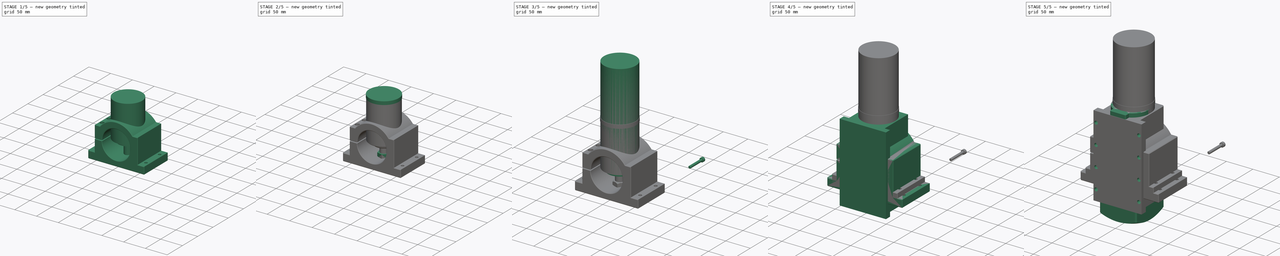
[diagram: build sequence overview — one tinted view per stage of 5, left to right]
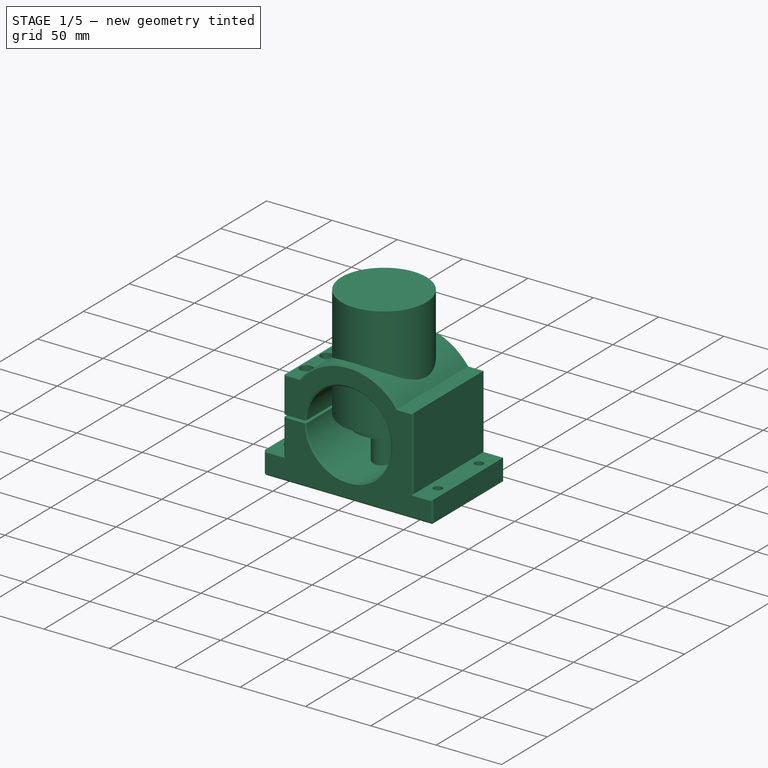
[diagram: stage 1 of 5 — iso view after this stage's code; geometry added in this stage tinted green]
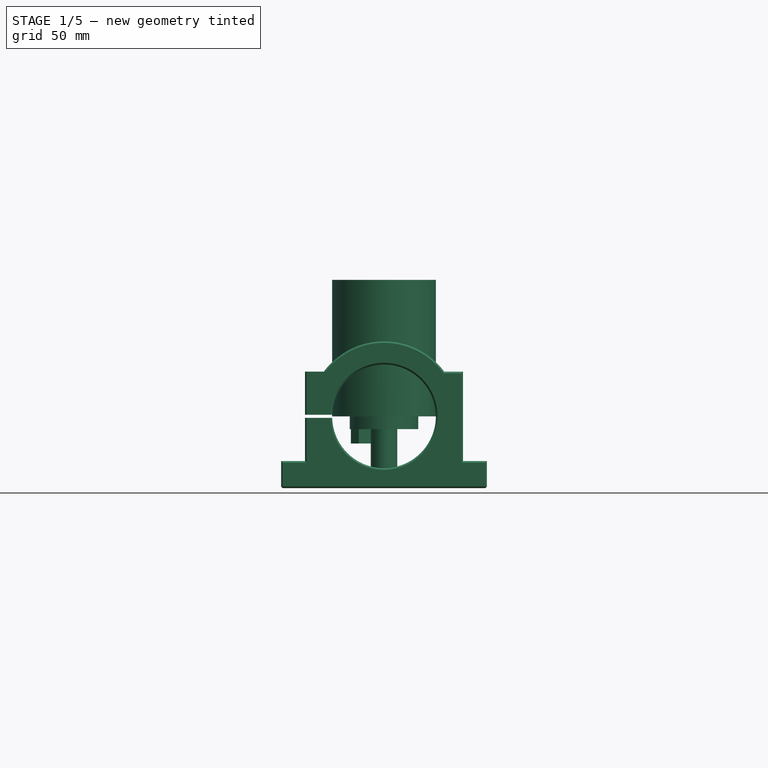
[diagram: stage 1 of 5 — front view after this stage's code; geometry added in this stage tinted green]
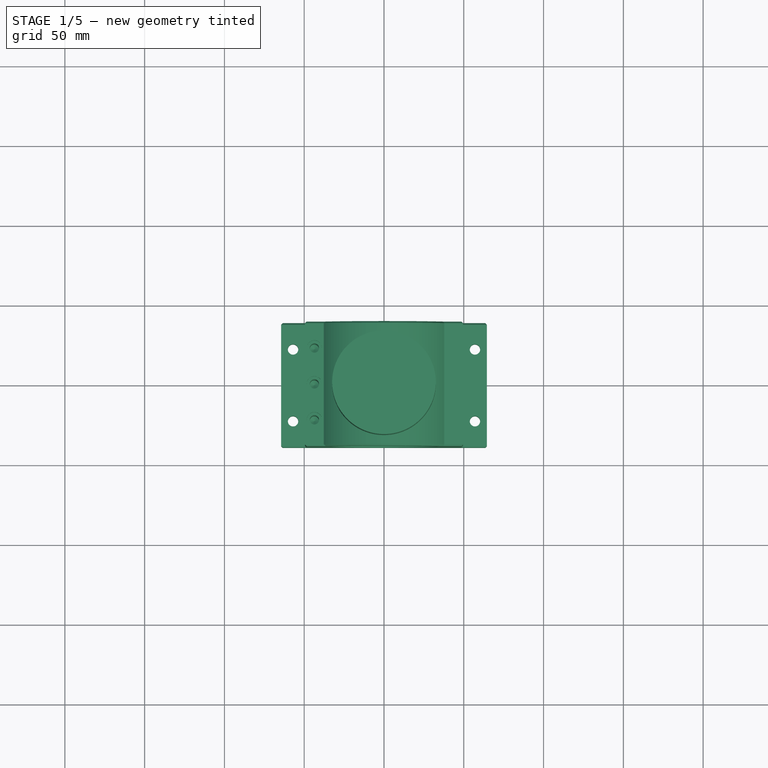
[diagram: stage 1 of 5 — top view after this stage's code; geometry added in this stage tinted green]
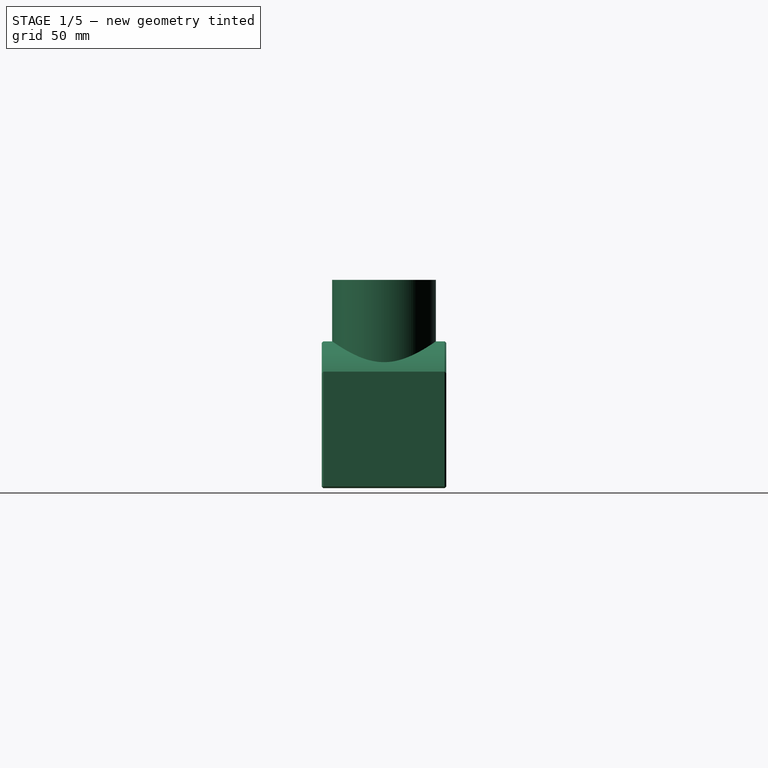
[diagram: stage 1 of 5 — right view after this stage's code; geometry added in this stage tinted green]
FCSTD DOCUMENT  (FreeCAD 2021.717R24301 +3842 (Git))
Label: Spindle
License: Creative Commons Attribution
LicenseURL: http://creativecommons.org/licenses/by/4.0/
objects: App::FeaturePython×69, Part::FeaturePython×52, Sketcher::SketchObject×32, PartDesign::Pad×22, App::Link×14, App::LinkElement×8, PartDesign::Chamfer×7, PartDesign::Body×7, PartDesign::Pocket×5, PartDesign::Hole×5, PartDesign::Groove×3, PartDesign::Mirrored×3, PartDesign::Plane×2, PartDesign::Line×1, PartDesign::Fillet×1, App::DocumentObjectGroup×1
note: 229 computed .brp shape members not serialized (recipe doc carries the construction recipe); baked Part::Feature solids carry a one-line shape summary decoded from their .brp

FEATURE [PartDesign::Body] Body003  label="0.8KW water"
  AutoGroupSolids = false
  ExportMode = 0
  Group = -> [Sketch013,Pad009,Sketch014,Pad010,Sketch015,Pad011,Hole002]
  Origin = -> Origin003
  Tip = -> Hole002
  _ExportChildren = -> [Pad009,Pad010,Hole002]
  _GroupVersion = 1
FEATURE [Sketcher::SketchObject] Sketch016
  FullyConstrained = true
  MapMode = 5
  Placement = pos=(0,0,0) rot=(1,0,0;1.5708rad)
  Support = -> [XZ_Plane004]
  sketch-geometry (18):
    g0: ArcOfCircle CenterX=0 CenterY=0 CenterZ=0 NormalX=0 NormalY=0 NormalZ=1 AngleXU=0 Radius=32.5 StartAngle=3.17237 EndAngle=9.394
    g1: LineSegment StartX=-49.5 StartY=28 StartZ=0 EndX=-37.7492 EndY=28 EndZ=0
    g2: LineSegment StartX=49.5 StartY=28 StartZ=0 EndX=49.5 EndY=-28 EndZ=0
    g3: LineSegment StartX=-49.5 StartY=-28 StartZ=0 EndX=-49.5 EndY=-1 EndZ=0
    g4: LineSegment StartX=-64.5 StartY=-45 StartZ=0 EndX=64.5 EndY=-45 EndZ=0
    g5: LineSegment StartX=64.5 StartY=-45 StartZ=0 EndX=64.5 EndY=-28 EndZ=0
    g6: LineSegment StartX=64.5 StartY=-28 StartZ=0 EndX=49.5 EndY=-28 EndZ=0
    g7: LineSegment StartX=-64.5 StartY=-28 StartZ=0 EndX=-64.5 EndY=-45 EndZ=0
    g8: LineSegment StartX=-49.5 StartY=-28 StartZ=0 EndX=-64.5 EndY=-28 EndZ=0
    g9: LineSegment StartX=-49.5 StartY=1 StartZ=0 EndX=-32.4846 EndY=1 EndZ=0
    g10: LineSegment StartX=-32.4846 StartY=-1 StartZ=0 EndX=-49.5 EndY=-1 EndZ=0
    g11: GeomPoint [constr] X=0 Y=47 Z=0
    g12: LineSegment StartX=-49.5 StartY=1 StartZ=0 EndX=-49.5 EndY=28 EndZ=0
    g13: LineSegment [constr] StartX=-49.5 StartY=-1 StartZ=0 EndX=-49.5 EndY=1 EndZ=0
    g14: GeomPoint [constr] X=-49.5 Y=0 Z=0
    g15: ArcOfCircle CenterX=0 CenterY=0 CenterZ=0 NormalX=0 NormalY=0 NormalZ=1 AngleXU=0 Radius=47 StartAngle=0.638193 EndAngle=2.5034
    g16: LineSegment StartX=37.7492 StartY=28 StartZ=0 EndX=49.5 EndY=28 EndZ=0
    g17: GeomPoint [constr] X=0 Y=-45 Z=0
  constraints (45):
    c: Coincident(g0,g-1)
    c: Coincident(g16,g2)
    c: Coincident(g12,g1)
    c: Horizontal(g1)
    c: Vertical(g2)
    c: Vertical(g3)
    c: Coincident(g4,g5)
    c: Coincident(g5,g6)
    c: Coincident(g8,g7)
    c: Coincident(g7,g4)
    c: Horizontal(g4)
    c: Horizontal(g6)
    c: Vertical(g5)
    c: Vertical(g7)
    c: Diameter(g0) = 65
    c: Symmetric(g1,g2,g0)
    c: DistanceX(g1,g16) = 99
    c: DistanceY(g2,g2) = 56
    c: PointOnObject(g3,g6)
    c: Coincident(g6,g2)
    c: Tangent(g6,g8)
    c: PointOnObject(g8,g3)
    c: Horizontal(g9)
    c: Horizontal(g10)
    c: PointOnObject(g11,g-2)
    c: DistanceY(g4,g11) = 92
    c: DistanceY(g5,g5) = 17
    c: DistanceX(g4,g4) = 129
    c: Coincident(g3,g10)
    c: Coincident(g12,g9)
    c: Tangent(g3,g12)
    c: Coincident(g0,g10)
    c: Coincident(g0,g9)
    c: Coincident(g13,g3)
    c: Coincident(g13,g9)
    c: PointOnObject(g14,g-1)
    c: Symmetric(g9,g3,g14)
    c: DistanceY(g13,g13) = 2
    c: Tangent(g1,g16)
    c: Coincident(g15,g16)
    c: Coincident(g15,g1)
    c: PointOnObject(g11,g15)
    c: Coincident(g15,g0)
    c: PointOnObject(g17,g-2)
    c: Symmetric(g4,g4,g17)
FEATURE [PartDesign::Pad] Pad012
  ClaimChildren = false
  Direction = (1,1,1)
  Fit = 0
  FitJoin = 0
  InnerFit = 0
  InnerFitJoin = 0
  InnerTaperAngle = 0
  InnerTaperAngleRev = 0
  Length = 78
  Length2 = 100
  Linearize = true
  Midplane = true
  NewSolid = false
  Placement = pos=(0,0,0) rot=(1,0,0;1.5708rad)
  Profile = -> Sketch016
  Refine = true
  Suppress = false
  Type = 0
  _ProfileBasedVersion = 0
FEATURE [Sketcher::SketchObject] Sketch017
  ExternalGeometry = -> [Pad012]
  FullyConstrained = true
  MapMode = 5
  Placement = pos=(0,0,28) rot=(0,0,1;3.14159rad)
  Support = -> [Pad012]
  sketch-geometry (5):
    g0: Circle CenterX=43.6246 CenterY=0 CenterZ=0 NormalX=0 NormalY=0 NormalZ=1 AngleXU=0 Radius=4.75
    g1: Circle CenterX=43.6246 CenterY=22.5 CenterZ=0 NormalX=0 NormalY=0 NormalZ=1 AngleXU=0 Radius=4.75
    g2: Circle CenterX=43.6246 CenterY=-22.5 CenterZ=0 NormalX=0 NormalY=0 NormalZ=1 AngleXU=0 Radius=4.75
    g3: GeomPoint [constr] X=37.7492 Y=0 Z=0
    g4: GeomPoint [constr] X=49.5 Y=0 Z=0
  constraints (11):
    c: PointOnObject(g0,g-1)
    c: Equal(g2,g0)
    c: Equal(g0,g1)
    c: Symmetric(g1,g2,g0)
    c: PointOnObject(g3,g-3)
    c: PointOnObject(g4,g-4)
    c: Horizontal(g4,g3)
    c: Symmetric(g4,g3,g0)
    c: Vertical(g1,g0)
    c: Diameter(g1) = 9.5
    c: DistanceY(g2,g1) = 45
FEATURE [PartDesign::Hole] Hole003
  BaseFeature = -> Pad012
  ClaimChildren = false
  CustomThreadClearance = 0
  Depth = 50
  DepthType = 0
  Diameter = 5.8
  DrillForDepth = false
  DrillPoint = 1
  DrillPointAngle = 118
  Fit = 0
  FitJoin = 0
  HoleCutCountersinkAngle = 90
  HoleCutCustomValues = false
  HoleCutDepth = 5.4
  HoleCutDiameter = 9.5
  HoleCutType = 1
  InnerFit = 0
  InnerFitJoin = 0
  ModelThread = false
  NewSolid = false
  Placement = pos=(0,0,0) rot=(1,0,0;1.5708rad)
  Profile = -> Sketch017
  Refine = true
  Suppress = false
  Tapered = false
  TaperedAngle = 90
  ThreadClass = 0
  ThreadDepth = 20
  ThreadDepthType = 1
  ThreadDirection = 0
  ThreadFit = 2
  ThreadSize = 13
  ThreadType = 1
  Threaded = false
  UseCustomThreadClearance = false
  _ProfileBasedVersion = 0
FEATURE [PartDesign::Chamfer] Chamfer002
  Angle = 45
  Base = -> Hole003 [Edge14,Edge25,Edge29,Edge30,Edge31,Edge32,Edge33,Edge35,Edge7,Edge4,Edge27,Edge34,Edge18,Edge17,Edge16,Edge3,Edge6,Edge24,Edge23,Edge22,Edge21,Edge20,Edge19,Edge36,Edge57]
  BaseFeature = -> Hole003
  ChamferType = 0
  FlipDirection = false
  NewSolid = false
  Placement = pos=(0,0,0) rot=(1,0,0;1.5708rad)
  Refine = true
  Size = 1
  Size2 = 1
  SupportTransform = false
  Suppress = false
FEATURE [Sketcher::SketchObject] Sketch018
  FullyConstrained = true
  MapMode = 5
  Placement = pos=(0,0,-28) rot=(0,0,1;3.14159rad)
  Support = -> [Chamfer002]
  sketch-geometry (3):
    g0: Circle CenterX=-57 CenterY=22.5 CenterZ=0 NormalX=0 NormalY=0 NormalZ=1 AngleXU=0 Radius=3.25
    g1: Circle CenterX=-57 CenterY=-22.5 CenterZ=0 NormalX=0 NormalY=0 NormalZ=1 AngleXU=0 Radius=3.25
    g2: GeomPoint [constr] X=-57 Y=0 Z=0
  constraints (7):
    c: PointOnObject(g2,g-1)
    c: Vertical(g0,g1)
    c: Symmetric(g0,g1,g2)
    c: Equal(g0,g1)
    c: Diameter(g0) = 6.5
    c: DistanceX(g0,g-1) = 57
    c: DistanceY(g1,g0) = 45
FEATURE [PartDesign::Pocket] Pocket002
  BaseFeature = -> Chamfer002
  ClaimChildren = false
  Fit = 0
  FitJoin = 0
  InnerFit = 0
  InnerFitJoin = 0
  InnerTaperAngle = 0
  InnerTaperAngleRev = 0
  Length = 5
  Length2 = 100
  Linearize = true
  NewSolid = false
  Placement = pos=(0,0,0) rot=(1,0,0;1.5708rad)
  Profile = -> Sketch018
  Refine = true
  Suppress = false
  Type = 1
  _ProfileBasedVersion = 0
FEATURE [PartDesign::Mirrored] Mirrored001
  BaseFeature = -> Pocket002
  CopyShape = false
  MirrorPlane = -> YZ_Plane004
  NewSolid = false
  OriginalSubs = -> [Pocket002]
  Originals = -> [Pocket002]
  ParallelTransform = true
  Placement = pos=(0,0,0) rot=(1,0,0;1.5708rad)
  Refine = true
  SubTransform = true
  Suppress = false
  _Version = 1
FEATURE [App::Link] Link007  label="Link007(M5x35-Screw)"
  AutoLinkLabel = true
  AutoPlacement = true
  LinkPlacement = pos=(123.375,60.6,-22.5) rot=(-1,0,0;1.5708rad)
  LinkedObject = -> Screw
  Placement = pos=(123.375,60.6,-22.5) rot=(-1,0,0;1.5708rad)
  SyncGroupVisibility = false
  _LinkVersion = 1
FEATURE [App::Link] Link008  label="Link008(M5x35-Screw)"
  AutoLinkLabel = true
  AutoPlacement = true
  LinkPlacement = pos=(123.375,60.6,-1.35e-14) rot=(-1,0,0;1.5708rad)
  LinkedObject = -> Screw
  Placement = pos=(123.375,60.6,-1.35e-14) rot=(-1,0,0;1.5708rad)
  SyncGroupVisibility = false
  _LinkVersion = 1
FEATURE [Part::FeaturePython] Screw001  label="1/4inx1in-Screw"  # Fasteners workbench fastener (typed FeaturePython)
  diameter = 10
  invert = false
  length = 4
  lengthCustom = 25.4
  matchOuter = false
  offset = 0
  thread = false
  type = 2
FEATURE [App::LinkElement] Link009_i0
  LinkPlacement = pos=(224,10,-22.5) rot=(0,0.707107,0.707107;3.14159rad)
  LinkedObject = -> Screw001
  Placement = pos=(224,10,-22.5) rot=(0,0.707107,0.707107;3.14159rad)
  _LinkVersion = 1
FEATURE [App::LinkElement] Link009_i1
  LinkPlacement = pos=(224,10,22.5) rot=(0,0.707107,0.707107;3.14159rad)
  LinkedObject = -> Screw001
  Placement = pos=(224,10,22.5) rot=(0,0.707107,0.707107;3.14159rad)
  _LinkVersion = 1
FEATURE [App::LinkElement] Link009_i2
  LinkPlacement = pos=(110,10,-22.5) rot=(-1,0,0;1.5708rad)
  LinkedObject = -> Screw001
  Placement = pos=(110,10,-22.5) rot=(-1,0,0;1.5708rad)
  _LinkVersion = 1
FEATURE [App::LinkElement] Link009_i3
  LinkPlacement = pos=(110,10,22.5) rot=(-1,0,0;1.5708rad)
  LinkedObject = -> Screw001
  Placement = pos=(110,10,22.5) rot=(-1,0,0;1.5708rad)
  _LinkVersion = 1
FEATURE [App::Link] Link009  label="1/4inx1in-Screw 4ct"
  AutoLinkLabel = true
  AutoPlacement = true
  ElementCount = 4
  ElementList = -> [Link009_i0,Link009_i1,Link009_i2,Link009_i3]
  LinkedObject = -> Screw001
  SyncGroupVisibility = false
  _LinkVersion = 1
FEATURE [Part::FeaturePython] Parts001  # WARN: FeaturePython — macro-defined, semantics opaque (R4)
  Group = -> [Link004,Link003,Link005,Link006,Screw,Link008,Link007,Link009]
  GroupMode = 0
  _LinkVersion = 1
FEATURE [Sketcher::SketchObject] Sketch022
  FullyConstrained = true
  MapMode = 5
  Support = -> [XY_Plane006]
  sketch-geometry (1):
    g0: Circle CenterX=0 CenterY=0 CenterZ=0 NormalX=0 NormalY=0 NormalZ=1 AngleXU=0 Radius=32.5
  constraints (2):
    c: Coincident(g0,g-1)
    c: Diameter(g0) = 65
FEATURE [PartDesign::Pad] Pad014
  ClaimChildren = false
  Direction = (1,1,1)
  Fit = 0
  FitJoin = 0
  InnerFit = 0
  InnerFitJoin = 0
  InnerTaperAngle = 0
  InnerTaperAngleRev = 0
  Length = 85.5
  Length2 = 100
  Linearize = true
  NewSolid = false
  Profile = -> Sketch022
  Refine = true
  Suppress = false
  Type = 0
  _ProfileBasedVersion = 1
FEATURE [Sketcher::SketchObject] Sketch023
  FullyConstrained = true
  MapMode = 5
  Placement = pos=(0,0,0) rot=(1,0,0;3.14159rad)
  Support = -> [Pad014]
  sketch-geometry (1):
    g0: Circle CenterX=0 CenterY=0 CenterZ=0 NormalX=0 NormalY=0 NormalZ=1 AngleXU=0 Radius=21.5
  constraints (2):
    c: Coincident(g0,g-1)
    c: Diameter(g0) = 43
FEATURE [PartDesign::Pad] Pad015
  BaseFeature = -> Pad014
  ClaimChildren = false
  Direction = (1,1,1)
  Fit = 0
  FitJoin = 0
  InnerFit = 0
  InnerFitJoin = 0
  InnerTaperAngle = 0
  InnerTaperAngleRev = 0
  Length = 8
  Length2 = 100
  Linearize = true
  NewSolid = false
  Profile = -> Sketch023
  Refine = true
  Suppress = false
  Type = 0
  _ProfileBasedVersion = 1
FEATURE [Sketcher::SketchObject] Sketch024
  FullyConstrained = true
  MapMode = 5
  Placement = pos=(0,0,-8) rot=(1,0,0;3.14159rad)
  Support = -> [Pad015]
  sketch-geometry (2):
    g0: Circle CenterX=0 CenterY=0 CenterZ=0 NormalX=0 NormalY=0 NormalZ=1 AngleXU=0 Radius=8.3
    g1: Circle CenterX=0 CenterY=0 CenterZ=0 NormalX=0 NormalY=0 NormalZ=1 AngleXU=0 Radius=3.175
  constraints (4):
    c: Coincident(g0,g-1)
    c: Diameter(g0) = 16.6
    c: Coincident(g1,g0)
    c: Diameter(g1) = 6.35
FEATURE [PartDesign::Pad] Pad016
  BaseFeature = -> Pad015
  ClaimChildren = false
  Direction = (1,1,1)
  Fit = 0
  FitJoin = 0
  InnerFit = 0
  InnerFitJoin = 0
  InnerTaperAngle = 0
  InnerTaperAngleRev = 0
  Length = 24.5
  Length2 = 100
  Linearize = true
  NewSolid = false
  Profile = -> Sketch024
  Refine = true
  Suppress = false
  Type = 0
  _ProfileBasedVersion = 1
FEATURE [Sketcher::SketchObject] Sketch025
  ExternalGeometry = -> [Pad016]
  FullyConstrained = false
  MapMode = 5
  Placement = pos=(0,0,0) rot=(1,0,0;3.14159rad)
  Support = -> [Pad016]
  sketch-geometry (6):
    g0: ArcOfCircle CenterX=0 CenterY=0 CenterZ=0 NormalX=0 NormalY=0 NormalZ=1 AngleXU=0 Radius=21.5 StartAngle=3.40339 EndAngle=4.45059
    g1: LineSegment StartX=-15.8177 StartY=-0.614862 StartZ=0 EndX=-0.614862 EndY=-15.8177 EndZ=0
    g2: LineSegment StartX=-0.614862 StartY=-15.8177 StartZ=0 EndX=-5.56461 EndY=-20.7674 EndZ=0
    g3: LineSegment StartX=-15.8177 StartY=-0.614862 StartZ=0 EndX=-20.7674 EndY=-5.56461 EndZ=0
    g4: LineSegment [constr] StartX=0 StartY=0 StartZ=0 EndX=-24.9637 EndY=-24.9637 EndZ=0
    g5: GeomPoint [constr] X=-8.21626 Y=-8.21626 Z=0
  constraints (16):
    c: Coincident(g0,g-3)
    c: Equal(g0,g-3)
    c: Coincident(g1,g2)
    c: Coincident(g1,g3)
    c: Parallel(g3,g2)
    c: Equal(g3,g2)
    c: Perpendicular(g1,g3)
    c: Coincident(g4,g0)
    c: Angle(g4,g-1) = 2.35619
    c: Parallel(g3,g4)
    c: Distance(g1) = 21.5
    c: Distance(g3) = 7
    c: PointOnObject(g5,g1)
    c: PointOnObject(g5,g4)
    c: Coincident(g0,g3)
    c: Coincident(g0,g2)
FEATURE [PartDesign::Pad] Pad017
  BaseFeature = -> Pad016
  ClaimChildren = false
  Direction = (1,1,1)
  Fit = 0
  FitJoin = 0
  InnerFit = 0
  InnerFitJoin = 0
  InnerTaperAngle = 0
  InnerTaperAngleRev = 0
  Length = 17
  Length2 = 100
  Linearize = true
  NewSolid = false
  Profile = -> Sketch025
  Refine = true
  Suppress = false
  Type = 0
  _ProfileBasedVersion = 1
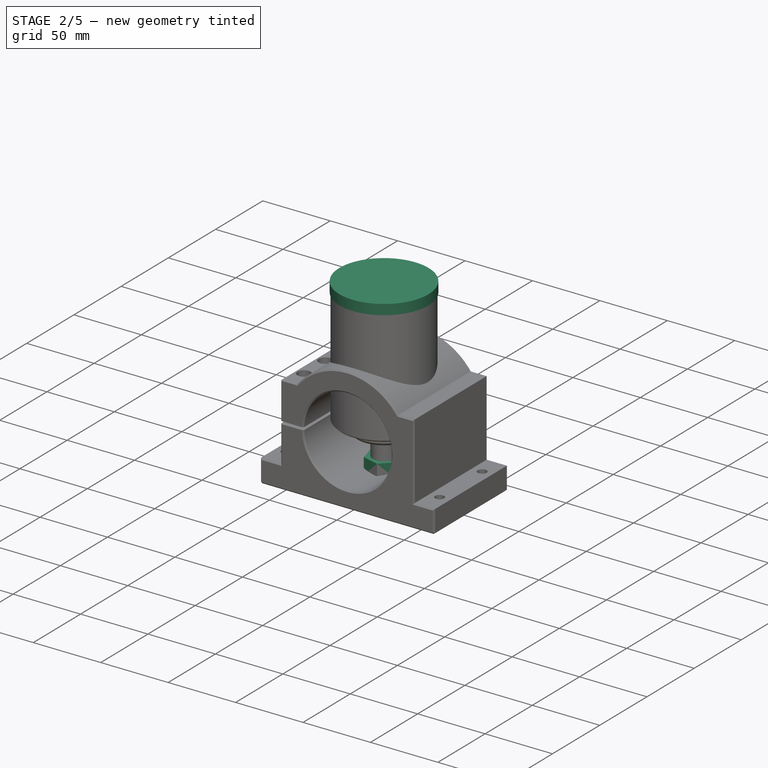
[diagram: stage 2 of 5 — iso view after this stage's code; geometry added in this stage tinted green]
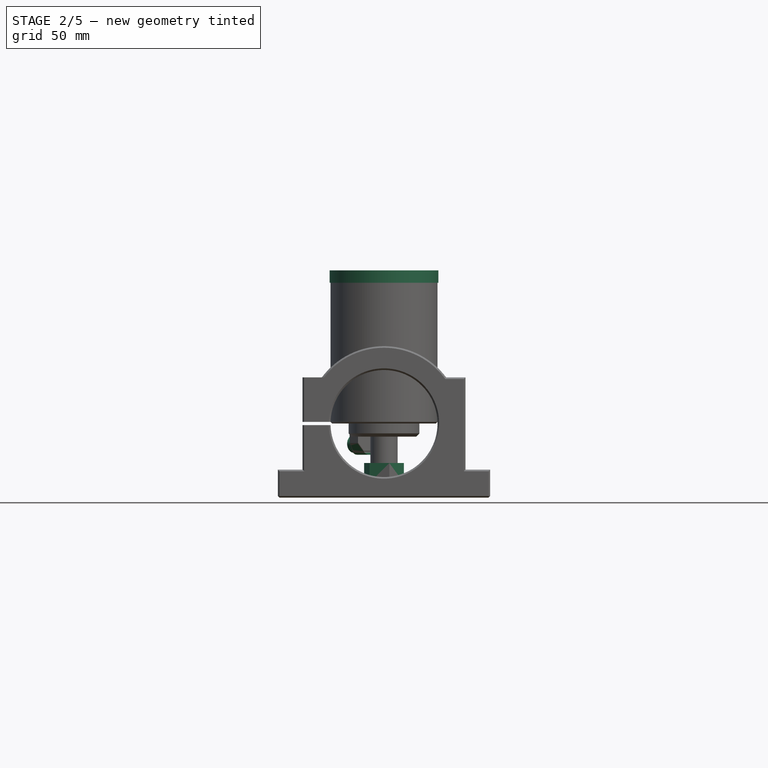
[diagram: stage 2 of 5 — front view after this stage's code; geometry added in this stage tinted green]
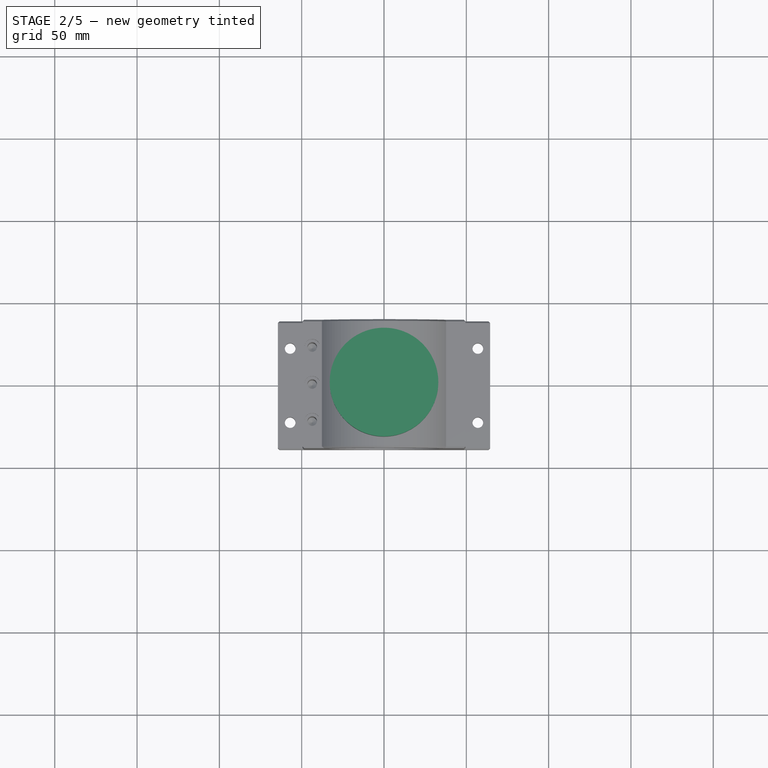
[diagram: stage 2 of 5 — top view after this stage's code; geometry added in this stage tinted green]
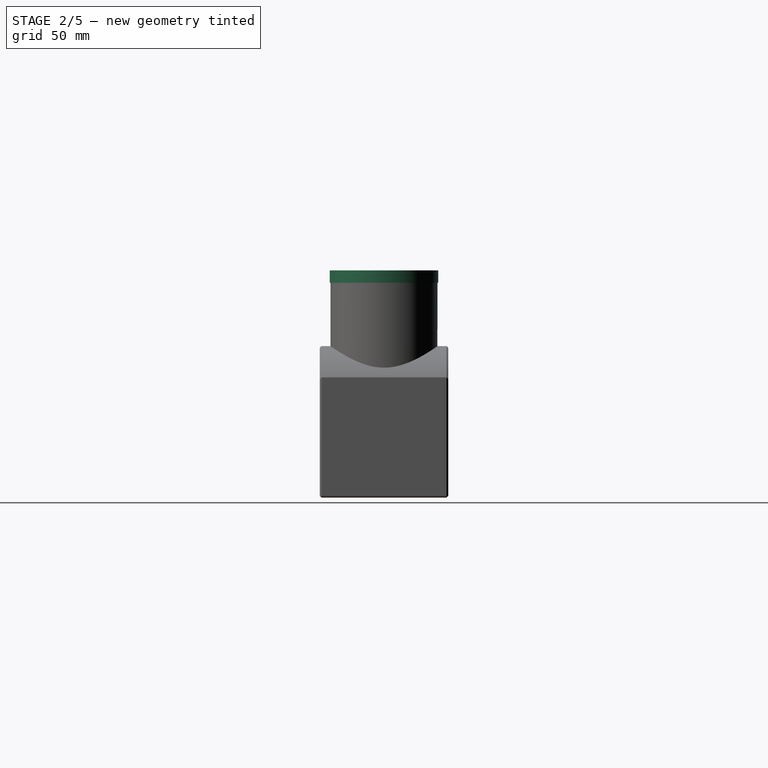
[diagram: stage 2 of 5 — right view after this stage's code; geometry added in this stage tinted green]
FEATURE [PartDesign::Chamfer] Chamfer004
  Angle = 45
  Base = -> Pad017 [Edge1]
  BaseFeature = -> Pad017
  ChamferType = 0
  FlipDirection = false
  NewSolid = false
  Refine = true
  Size = 2
  Size2 = 1
  SupportTransform = false
  Suppress = false
FEATURE [PartDesign::Chamfer] Chamfer005
  Angle = 45
  Base = -> Chamfer004 [Edge19,Edge10]
  BaseFeature = -> Chamfer004
  ChamferType = 0
  FlipDirection = false
  NewSolid = false
  Refine = true
  Size = 5
  Size2 = 1
  SupportTransform = false
  Suppress = false
FEATURE [PartDesign::Chamfer] Chamfer006
  Angle = 45
  Base = -> Chamfer005 [Edge34]
  BaseFeature = -> Chamfer005
  ChamferType = 0
  FlipDirection = false
  NewSolid = false
  Refine = true
  Size = 1
  Size2 = 1
  SupportTransform = false
  Suppress = false
FEATURE [PartDesign::Plane] DatumPlane
  AttachmentOffset = pos=(0,0,-1) rot=(0,0,1;0rad)
  Length = 256.946
  MapMode = 5
  MinimumLength = 10
  MinimumWidth = 10
  Placement = pos=(-8.92337,8.92337,0) rot=(0.862856,0.357407,0.357407;1.71777rad)
  ResizeMode = 0
  Support = -> [Chamfer006]
  Width = 281.338
FEATURE [Sketcher::SketchObject] Sketch026
  FullyConstrained = true
  MapMode = 5
  Placement = pos=(-8.92337,8.92337,0) rot=(-0.281085,0.678598,0.678598;3.68962rad)
  Support = -> [DatumPlane]
  sketch-geometry (4):
    g0: ArcOfCircle CenterX=0 CenterY=-12.35 CenterZ=0 NormalX=0 NormalY=0 NormalZ=1 AngleXU=0 Radius=6.65 StartAngle=3.14159 EndAngle=6.28319
    g1: LineSegment StartX=-6.65 StartY=-12.35 StartZ=0 EndX=-6.65 EndY=0 EndZ=0
    g2: LineSegment StartX=-6.65 StartY=0 StartZ=0 EndX=6.65 EndY=0 EndZ=0
    g3: LineSegment StartX=6.65 StartY=0 StartZ=0 EndX=6.65 EndY=-12.35 EndZ=0
  constraints (11):
    c: PointOnObject(g0,g-2)
    c: Vertical(g1)
    c: Coincident(g2,g1)
    c: Horizontal(g2)
    c: Coincident(g3,g2)
    c: Vertical(g3)
    c: Tangent(g0,g3) = 1.5708
    c: Tangent(g0,g1) = 1.5708
    c: Diameter(g0) = 13.3
    c: DistanceY(g0,g-1) = 12.35
    c: Horizontal(g2,g-1)
FEATURE [PartDesign::Pad] Pad018
  BaseFeature = -> Chamfer006
  ClaimChildren = false
  Direction = (1,1,1)
  Fit = 0
  FitJoin = 0
  InnerFit = 0
  InnerFitJoin = 0
  InnerTaperAngle = 0
  InnerTaperAngleRev = 0
  Length = 10.5
  Length2 = 100
  Linearize = true
  NewSolid = false
  Profile = -> Sketch026
  Refine = true
  Suppress = false
  Type = 0
  _ProfileBasedVersion = 1
FEATURE [Sketcher::SketchObject] Sketch027
  ExternalGeometry = -> [Pad018]
  FullyConstrained = true
  MapMode = 5
  Placement = pos=(-16.348,16.348,4.4e-15) rot=(-0.281085,0.678598,0.678598;3.68962rad)
  Support = -> [Pad018]
  sketch-geometry (1):
    g0: Circle CenterX=1e-14 CenterY=-12.35 CenterZ=0 NormalX=0 NormalY=0 NormalZ=1 AngleXU=0 Radius=5.35
  constraints (2):
    c: Coincident(g0,g-3)
    c: Diameter(g0) = 10.7
FEATURE [PartDesign::Pad] Pad019
  BaseFeature = -> Pad018
  ClaimChildren = false
  Direction = (1,1,1)
  Fit = 0
  FitJoin = 0
  InnerFit = 0
  InnerFitJoin = 0
  InnerTaperAngle = 0
  InnerTaperAngleRev = 0
  Length = 3.5
  Length2 = 100
  Linearize = true
  NewSolid = false
  Profile = -> Sketch027
  Refine = true
  Suppress = false
  Type = 0
  _ProfileBasedVersion = 1
FEATURE [PartDesign::Fillet] Fillet
  Base = -> Pad019 [Edge55,Edge47,Edge19,Edge20,Edge18,Edge35,Edge9,Edge7,Edge3,Edge1,Edge2,Edge4,Edge11]
  BaseFeature = -> Pad019
  NewSolid = false
  Radius = 0.5
  Refine = true
  SupportTransform = false
  Suppress = false
FEATURE [Sketcher::SketchObject] Sketch028
  ExternalGeometry = -> [Fillet]
  FullyConstrained = true
  MapMode = 5
  Placement = pos=(0,0,0) rot=(1,0,0;3.14159rad)
  Support = -> [Fillet]
  sketch-geometry (4):
    g0: LineSegment StartX=2.35 StartY=-32.4149 StartZ=0 EndX=2.35 EndY=-30.9149 EndZ=0
    g1: LineSegment StartX=2.35 StartY=-30.9149 StartZ=0 EndX=-2.35 EndY=-30.9149 EndZ=0
    g2: LineSegment StartX=-2.35 StartY=-30.9149 StartZ=0 EndX=-2.35 EndY=-32.4149 EndZ=0
    g3: ArcOfCircle CenterX=0 CenterY=0 CenterZ=0 NormalX=0 NormalY=0 NormalZ=1 AngleXU=0 Radius=32.5 StartAngle=4.64002 EndAngle=4.78476
  constraints (11):
    c: Coincident(g0,g1)
    c: Coincident(g1,g2)
    c: Vertical(g0)
    c: Vertical(g2)
    c: Coincident(g3,g-3)
    c: Equal(g3,g-3)
    c: Coincident(g0,g3)
    c: Coincident(g3,g2)
    c: DistanceX(g1,g1) = 4.7
    c: Symmetric(g0,g1,g-2)
    c: DistanceY(g0,g0) = 1.5
FEATURE [PartDesign::Pocket] Pocket004
  BaseFeature = -> Fillet
  ClaimChildren = false
  Fit = 0
  FitJoin = 0
  InnerFit = 0
  InnerFitJoin = 0
  InnerTaperAngle = 0
  InnerTaperAngleRev = 0
  Length = 57
  Length2 = 100
  Linearize = true
  NewSolid = false
  Profile = -> Sketch028
  Refine = true
  Suppress = false
  Type = 0
  _ProfileBasedVersion = 1
FEATURE [Sketcher::SketchObject] Sketch029
  FullyConstrained = true
  MapMode = 5
  Placement = pos=(0,0,85.5) rot=(0,0,1;0rad)
  Support = -> [Pocket004]
  sketch-geometry (1):
    g0: Circle CenterX=0 CenterY=0 CenterZ=0 NormalX=0 NormalY=0 NormalZ=1 AngleXU=0 Radius=33
  constraints (2):
    c: Coincident(g0,g-1)
    c: Diameter(g0) = 66
FEATURE [PartDesign::Pad] Pad020
  BaseFeature = -> Pocket004
  ClaimChildren = false
  Direction = (1,1,1)
  Fit = 0
  FitJoin = 0
  InnerFit = 0
  InnerFitJoin = 0
  InnerTaperAngle = 0
  InnerTaperAngleRev = 0
  Length = 7.5
  Length2 = 100
  Linearize = true
  NewSolid = false
  Profile = -> Sketch029
  Refine = true
  Suppress = false
  Type = 0
  _ProfileBasedVersion = 1
FEATURE [PartDesign::Plane] DatumPlane001
  AttachmentOffset = pos=(0,0,3.5) rot=(0,0,1;0rad)
  Length = 231.5
  MapMode = 5
  MinimumLength = 10
  MinimumWidth = 10
  Placement = pos=(0,0,-36) rot=(1,0,0;3.14159rad)
  ResizeMode = 0
  Support = -> [Pad020]
  Width = 131.877
FEATURE [Sketcher::SketchObject] Sketch030
  FullyConstrained = true
  MapMode = 5
  Placement = pos=(0,0,-36) rot=(1,0,0;3.14159rad)
  Support = -> [DatumPlane001]
  sketch-geometry (8):
    g0: Circle CenterX=0 CenterY=0 CenterZ=0 NormalX=0 NormalY=0 NormalZ=1 AngleXU=0 Radius=5
    g1: LineSegment StartX=8.83883 StartY=-8.83883 StartZ=0 EndX=12.0741 EndY=3.23524 EndZ=0
    g2: LineSegment StartX=12.0741 StartY=3.23524 StartZ=0 EndX=3.23524 EndY=12.0741 EndZ=0
    g3: LineSegment StartX=3.23524 StartY=12.0741 StartZ=0 EndX=-8.83883 EndY=8.83883 EndZ=0
    g4: LineSegment StartX=-8.83883 StartY=8.83883 StartZ=0 EndX=-12.0741 EndY=-3.23524 EndZ=0
    g5: LineSegment StartX=-12.0741 StartY=-3.23524 StartZ=0 EndX=-3.23524 EndY=-12.0741 EndZ=0
    g6: LineSegment StartX=-3.23524 StartY=-12.0741 StartZ=0 EndX=8.83883 EndY=-8.83883 EndZ=0
    g7: Circle [constr] CenterX=0 CenterY=0 CenterZ=0 NormalX=0 NormalY=0 NormalZ=1 AngleXU=0 Radius=12.5
  constraints (18):
    c: Coincident(g0,g-1)
    c: Diameter(g0) = 10
    c: Coincident(g1,g2)
    c: Coincident(g2,g3)
    c: Coincident(g3,g4)
    c: Coincident(g4,g5)
    c: Coincident(g5,g6)
    c: Coincident(g6,g1)
    c: Equal(g1, g2-g6) x5
    c: PointOnObject(g1,g7)
    c: PointOnObject(g2,g7)
    c: PointOnObject(g3,g7)
    c: PointOnObject(g4,g7)
    c: PointOnObject(g5,g7)
    c: PointOnObject(g6,g7)
    c: Coincident(g7,g0)
    c: Angle(g5,g-1) = 0.785398
    c: Diameter(g7) = 25
FEATURE [PartDesign::Pad] Pad021
  BaseFeature = -> Pad020
  ClaimChildren = false
  Direction = (1,1,1)
  Fit = 0
  FitJoin = 0
  InnerFit = 0
  InnerFitJoin = 0
  InnerTaperAngle = 0
  InnerTaperAngleRev = 0
  Length = 12
  Length2 = 100
  Linearize = true
  NewSolid = false
  Profile = -> Sketch030
  Refine = true
  Reversed = true
  Suppress = false
  Type = 0
  _ProfileBasedVersion = 1
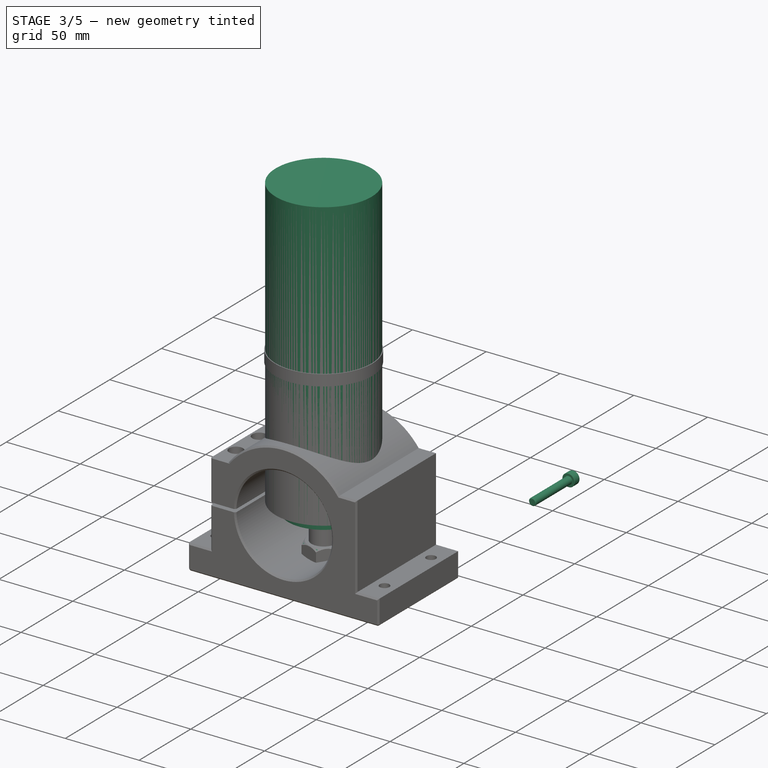
[diagram: stage 3 of 5 — iso view after this stage's code; geometry added in this stage tinted green]
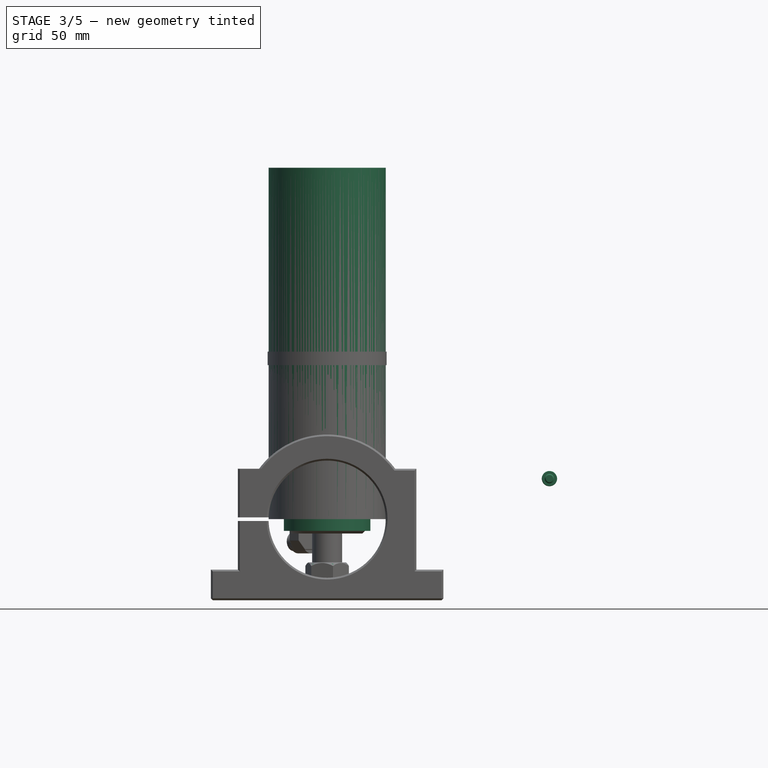
[diagram: stage 3 of 5 — front view after this stage's code; geometry added in this stage tinted green]
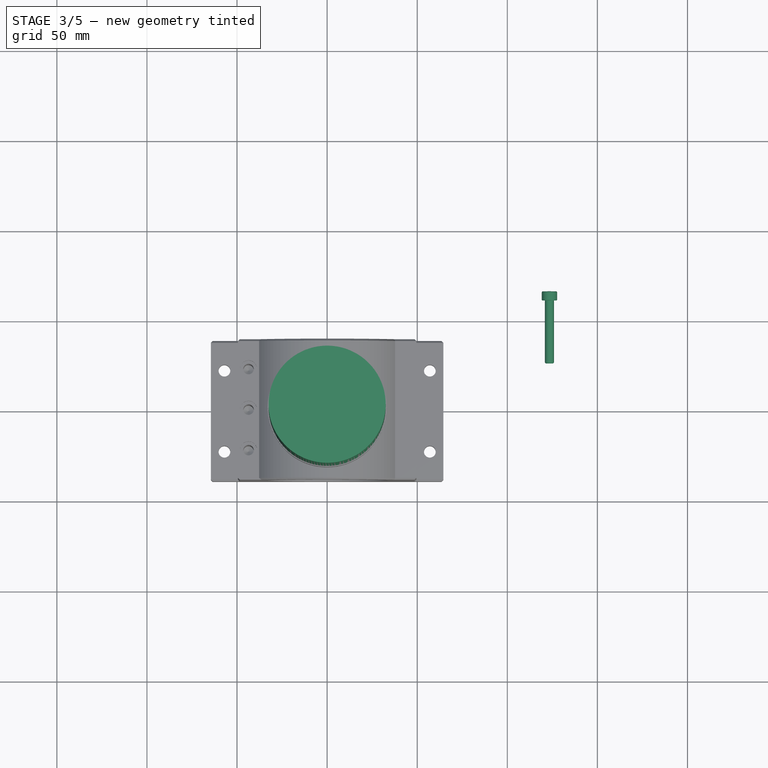
[diagram: stage 3 of 5 — top view after this stage's code; geometry added in this stage tinted green]
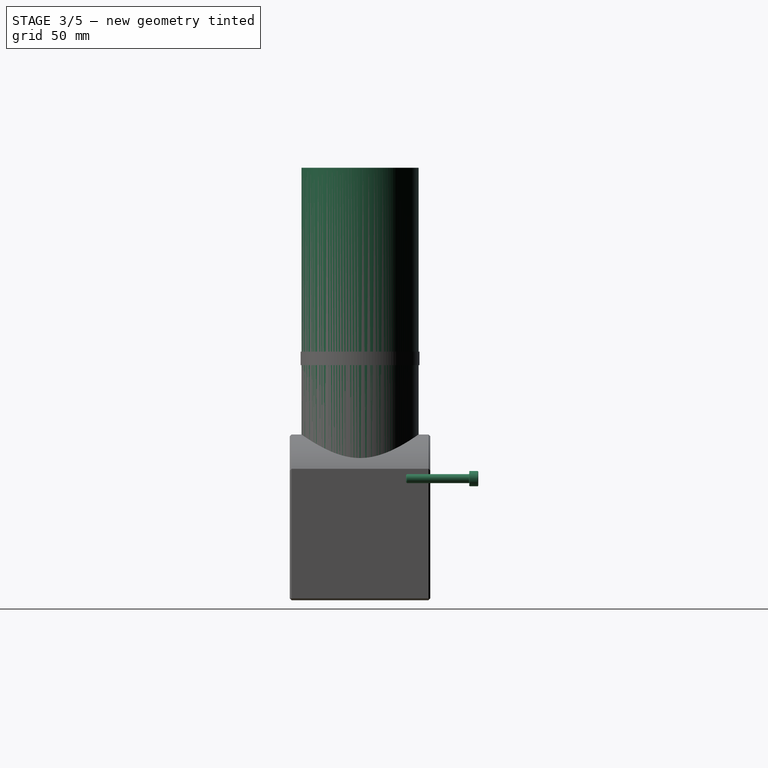
[diagram: stage 3 of 5 — right view after this stage's code; geometry added in this stage tinted green]
FEATURE [App::Link] Link  label="1.5kw air001"
  AutoLinkLabel = true
  AutoPlacement = true
  LinkPlacement = pos=(0,-12.75,39) rot=(0,0,1;3.14159rad)
  LinkedObject = -> Body
  Placement = pos=(0,-12.75,39) rot=(0,0,1;3.14159rad)
  SyncGroupVisibility = false
  _LinkVersion = 1
FEATURE [Sketcher::SketchObject] Sketch008
  FullyConstrained = true
  MapMode = 5
  Support = -> [XY_Plane001]
  sketch-geometry (1):
    g0: Circle CenterX=0 CenterY=0 CenterZ=0 NormalX=0 NormalY=0 NormalZ=1 AngleXU=0 Radius=9.5
  constraints (2):
    c: Coincident(g0,g-1)
    c: Diameter(g0) = 19
FEATURE [PartDesign::Pad] Pad006
  ClaimChildren = false
  Direction = (1,1,1)
  Fit = 0
  FitJoin = 0
  InnerFit = 0
  InnerFitJoin = 0
  InnerTaperAngle = 0
  InnerTaperAngleRev = 0
  Length = 10
  Length2 = 100
  Linearize = true
  NewSolid = false
  Profile = -> Sketch008
  Refine = true
  Suppress = false
  Type = 0
  _ProfileBasedVersion = 0
FEATURE [Sketcher::SketchObject] Sketch009
  FullyConstrained = true
  MapMode = 5
  Placement = pos=(0,0,10) rot=(0,0,1;0rad)
  Support = -> [Pad006]
  sketch-geometry (18):
    g0: LineSegment StartX=8.5 StartY=-4.24264 StartZ=0 EndX=8.5 EndY=4.24264 EndZ=0
    g1: LineSegment StartX=7.92423 StartY=5.2399 StartZ=0 EndX=0.575765 EndY=9.48254 EndZ=0
    g2: LineSegment StartX=-0.575765 StartY=9.48254 StartZ=0 EndX=-7.92423 EndY=5.2399 EndZ=0
    g3: LineSegment StartX=-8.5 StartY=4.24264 StartZ=0 EndX=-8.5 EndY=-4.24264 EndZ=0
    g4: LineSegment StartX=-7.92423 StartY=-5.2399 StartZ=0 EndX=-0.575765 EndY=-9.48254 EndZ=0
    g5: LineSegment StartX=0.575765 StartY=-9.48254 StartZ=0 EndX=7.92423 EndY=-5.2399 EndZ=0
    g6: ArcOfCircle CenterX=0 CenterY=0 CenterZ=0 NormalX=0 NormalY=0 NormalZ=1 AngleXU=0 Radius=9.5 StartAngle=2.55735 EndAngle=2.67864
    g7: ArcOfCircle CenterX=0 CenterY=0 CenterZ=0 NormalX=0 NormalY=0 NormalZ=1 AngleXU=0 Radius=9.5 StartAngle=1.51015 EndAngle=1.63144
    g8: ArcOfCircle CenterX=0 CenterY=0 CenterZ=0 NormalX=0 NormalY=0 NormalZ=1 AngleXU=0 Radius=9.5 StartAngle=0.462955 EndAngle=0.584243
    g9: ArcOfCircle CenterX=0 CenterY=0 CenterZ=0 NormalX=0 NormalY=0 NormalZ=1 AngleXU=0 Radius=9.5 StartAngle=5.69894 EndAngle=5.82023
    g10: ArcOfCircle CenterX=0 CenterY=0 CenterZ=0 NormalX=0 NormalY=0 NormalZ=1 AngleXU=0 Radius=9.5 StartAngle=4.65174 EndAngle=4.77303
    g11: ArcOfCircle CenterX=0 CenterY=0 CenterZ=0 NormalX=0 NormalY=0 NormalZ=1 AngleXU=0 Radius=9.5 StartAngle=3.60455 EndAngle=3.72584
    g12: LineSegment [constr] StartX=-7.92423 StartY=5.2399 StartZ=0 EndX=-8.5 EndY=4.24264 EndZ=0
    g13: LineSegment [constr] StartX=-0.575765 StartY=9.48254 StartZ=0 EndX=0.575765 EndY=9.48254 EndZ=0
    g14: LineSegment [constr] StartX=8.5 StartY=4.24264 StartZ=0 EndX=7.92423 EndY=5.2399 EndZ=0
    g15: LineSegment [constr] StartX=7.92423 StartY=-5.2399 StartZ=0 EndX=8.5 EndY=-4.24264 EndZ=0
    g16: LineSegment [constr] StartX=-0.575765 StartY=-9.48254 StartZ=0 EndX=0.575765 EndY=-9.48254 EndZ=0
    g17: LineSegment [constr] StartX=-7.92423 StartY=-5.2399 StartZ=0 EndX=-8.5 EndY=-4.24264 EndZ=0
  constraints (48):
    c: Vertical(g0)
    c: Diameter(g6) = 19
    c: Equal(g5,g4)
    c: Equal(g4,g3)
    c: Equal(g3,g0)
    c: Equal(g0,g1)
    c: Equal(g1,g2)
    c: DistanceX(g3,g0) = 17
    c: Coincident(g6,g-1)
    c: Vertical(g3)
    c: Symmetric(g1,g2,g-2)
    c: Symmetric(g4,g5,g-2)
    c: Coincident(g6,g2)
    c: Coincident(g7,g2)
    c: Equal(g6,g7)
    c: Coincident(g8,g1)
    c: PointOnObject(g7,g1)
    c: Coincident(g6,g7)
    c: Equal(g6,g8)
    c: Coincident(g9,g0)
    c: Coincident(g8,g0)
    c: Coincident(g6,g8)
    c: Coincident(g10,g5)
    c: Coincident(g9,g5)
    c: Coincident(g6,g9)
    c: Equal(g6,g10)
    c: Coincident(g11,g4)
    c: PointOnObject(g10,g4)
    c: Coincident(g6,g10)
    c: Equal(g6,g11)
    c: Coincident(g6,g3)
    c: Coincident(g11,g3)
    c: Coincident(g6,g11)
    c: Parallel(g5,g2)
    c: Coincident(g12,g2)
    c: Coincident(g12,g3)
    c: Coincident(g13,g2)
    c: Coincident(g13,g1)
    c: Coincident(g14,g0)
    c: Coincident(g1,g14)
    c: Coincident(g15,g5)
    c: Coincident(g0,g15)
    c: Coincident(g16,g4)
    c: Coincident(g16,g5)
    c: Coincident(g17,g4)
    c: Coincident(g17,g3)
    c: Equal(g12,g13)
    c: Equal(g13,g14)
FEATURE [PartDesign::Pad] Pad007
  BaseFeature = -> Pad006
  ClaimChildren = false
  Direction = (1,1,1)
  Fit = 0
  FitJoin = 0
  InnerFit = 0
  InnerFitJoin = 0
  InnerTaperAngle = 0
  InnerTaperAngleRev = 0
  Length = 4
  Length2 = 100
  Linearize = true
  NewSolid = false
  Profile = -> Sketch009
  Refine = true
  Suppress = false
  Type = 0
  _ProfileBasedVersion = 0
FEATURE [Sketcher::SketchObject] Sketch010
  ExternalGeometry = -> [Pad007]
  FullyConstrained = true
  MapMode = 5
  Placement = pos=(0,0,0) rot=(1,0,0;1.5708rad)
  Support = -> [XZ_Plane001]
  sketch-geometry (4):
    g0: ArcOfCircle CenterX=0 CenterY=-20.4819 CenterZ=0 NormalX=0 NormalY=0 NormalZ=1 AngleXU=0 Radius=35 StartAngle=1.25109 EndAngle=1.5708
    g1: GeomPoint [constr] X=6 Y=14 Z=0
    g2: LineSegment StartX=2.1e-15 StartY=14.5181 StartZ=0 EndX=11 EndY=14.5181 EndZ=0
    g3: LineSegment StartX=11 StartY=14.5181 StartZ=0 EndX=11 EndY=12.7446 EndZ=0
  constraints (12):
    c: PointOnObject(g0,g-2)
    c: PointOnObject(g0,g-2)
    c: PointOnObject(g1,g0)
    c: Horizontal(g1,g-3)
    c: DistanceX(g-1,g1) = 6
    c: Radius(g0) = 35
    c: DistanceX(g-1,g0) = 11
    c: Coincident(g2,g0)
    c: Horizontal(g2)
    c: Coincident(g3,g2)
    c: Coincident(g3,g0)
    c: Vertical(g3)
FEATURE [PartDesign::Groove] Groove001
  Angle = 360
  Axis = (-3e-16,3e-16,1)
  Base = (0,0,0)
  BaseFeature = -> Pad007
  ClaimChildren = false
  Fit = 0
  FitJoin = 0
  InnerFit = 0
  InnerFitJoin = 0
  NewSolid = false
  Profile = -> Sketch010
  ReferenceAxis = -> Z_Axis001
  Refine = true
  Suppress = false
  _ProfileBasedVersion = 0
FEATURE [PartDesign::Body] Body  label="1.5kw air"
  AutoGroupSolids = false
  ExportMode = 0
  Group = -> [Sketch,Pad,Sketch001,Pad001,Sketch002,Pad002,Chamfer,Sketch003,Pad003,Sketch004,Groove,DatumLine,Sketch005,Pocket,Mirrored,Sketch006,Pad004,Sketch007,Pad005,Hole001]
  Origin = -> Origin
  Placement = pos=(0,-100,0) rot=(0,0,1;0rad)
  Tip = -> Hole001
  _ExportChildren = -> [Pad,Pad001,Pad002,Chamfer,Pad003,Groove,DatumLine,Pocket,Mirrored,Pad004,Hole001]
  _GroupVersion = 1
FEATURE [Sketcher::SketchObject] Sketch012
  FullyConstrained = true
  MapMode = 5
  Support = -> [XY_Plane002]
  sketch-geometry (1):
    g0: Circle CenterX=0 CenterY=0 CenterZ=0 NormalX=0 NormalY=0 NormalZ=1 AngleXU=0 Radius=1.5875
  constraints (2):
    c: Coincident(g0,g-1)
    c: Diameter(g0) = 3.175
FEATURE [PartDesign::Pad] Pad008
  ClaimChildren = false
  Direction = (1,1,1)
  Fit = 0
  FitJoin = 0
  InnerFit = 0
  InnerFitJoin = 0
  InnerTaperAngle = 0
  InnerTaperAngleRev = 0
  Length = 50
  Length2 = 100
  Linearize = true
  NewSolid = false
  Profile = -> Sketch012
  Refine = true
  Suppress = false
  Type = 0
  _ProfileBasedVersion = 0
FEATURE [PartDesign::Body] Body002  label="Tool"
  AutoGroupSolids = false
  ExportMode = 0
  Group = -> [Sketch012,Pad008]
  Origin = -> Origin002
  Placement = pos=(-88,0,0) rot=(0,0,1;0rad)
  Tip = -> Pad008
  _ExportChildren = -> [Pad008]
  _GroupVersion = 1
FEATURE [App::Link] Link002  label="Link002(Tool)"
  AutoLinkLabel = true
  AutoPlacement = true
  LinkPlacement = pos=(0,-7,173) rot=(0,0,1;3.14159rad)
  LinkedObject = -> Body002
  Placement = pos=(0,-7,173) rot=(0,0,1;3.14159rad)
  SyncGroupVisibility = false
  _LinkVersion = 1
FEATURE [Part::FeaturePython] Parts  # WARN: FeaturePython — macro-defined, semantics opaque (R4)
  Group = -> [Link,Link001,Link002]
  GroupMode = 0
  _LinkVersion = 1
FEATURE [Sketcher::SketchObject] Sketch013
  FullyConstrained = true
  MapMode = 5
  Support = -> [XY_Plane003]
  sketch-geometry (1):
    g0: Circle CenterX=0 CenterY=0 CenterZ=0 NormalX=0 NormalY=0 NormalZ=1 AngleXU=0 Radius=32.5
  constraints (2):
    c: Coincident(g0,g-1)
    c: Diameter(g0) = 65
FEATURE [PartDesign::Pad] Pad009
  ClaimChildren = false
  Direction = (1,1,1)
  Fit = 0
  FitJoin = 0
  InnerFit = 0
  InnerFitJoin = 0
  InnerTaperAngle = 0
  InnerTaperAngleRev = 0
  Length = 195
  Length2 = 100
  Linearize = true
  NewSolid = false
  Profile = -> Sketch013
  Refine = true
  Suppress = false
  Type = 0
  _ProfileBasedVersion = 0
FEATURE [Sketcher::SketchObject] Sketch014
  FullyConstrained = true
  MapMode = 5
  Placement = pos=(0,0,0) rot=(1,0,0;3.14159rad)
  Support = -> [Pad009]
  sketch-geometry (1):
    g0: Circle CenterX=0 CenterY=0 CenterZ=0 NormalX=0 NormalY=0 NormalZ=1 AngleXU=0 Radius=24
  constraints (2):
    c: Coincident(g0,g-1)
    c: Diameter(g0) = 48
FEATURE [PartDesign::Pad] Pad010
  BaseFeature = -> Pad009
  ClaimChildren = false
  Direction = (1,1,1)
  Fit = 0
  FitJoin = 0
  InnerFit = 0
  InnerFitJoin = 0
  InnerTaperAngle = 0
  InnerTaperAngleRev = 0
  Length = 6.5
  Length2 = 100
  Linearize = true
  NewSolid = false
  Profile = -> Sketch014
  Refine = true
  Suppress = false
  Type = 0
  _ProfileBasedVersion = 0
FEATURE [Sketcher::SketchObject] Sketch015
  FullyConstrained = true
  MapMode = 5
  Placement = pos=(0,0,-6.5) rot=(1,0,0;3.14159rad)
  Support = -> [Pad010]
  sketch-geometry (1):
    g0: Circle CenterX=0 CenterY=0 CenterZ=0 NormalX=0 NormalY=0 NormalZ=1 AngleXU=0 Radius=7
  constraints (2):
    c: Coincident(g0,g-1)
    c: Diameter(g0) = 14
FEATURE [PartDesign::Pad] Pad011
  BaseFeature = -> Pad010
  ClaimChildren = false
  Direction = (1,1,1)
  Fit = 0
  FitJoin = 0
  InnerFit = 0
  InnerFitJoin = 0
  InnerTaperAngle = 0
  InnerTaperAngleRev = 0
  Length = 22.2
  Length2 = 100
  Linearize = true
  NewSolid = false
  Profile = -> Sketch015
  Refine = true
  Suppress = false
  Type = 0
  _ProfileBasedVersion = 0
FEATURE [PartDesign::Hole] Hole002
  BaseFeature = -> Pad011
  ClaimChildren = false
  CustomThreadClearance = 0
  Depth = 40
  DepthType = 0
  Diameter = 3.175
  DrillForDepth = false
  DrillPoint = 1
  DrillPointAngle = 118
  Fit = 0
  FitJoin = 0
  HoleCutCountersinkAngle = 90
  HoleCutCustomValues = false
  HoleCutDepth = 0
  HoleCutDiameter = 6.1
  HoleCutType = 0
  InnerFit = 0
  InnerFitJoin = 0
  ModelThread = false
  NewSolid = false
  Profile = -> Pad011 [Edge9]
  Refine = true
  Suppress = false
  Tapered = false
  TaperedAngle = 90
  ThreadClass = 0
  ThreadDepth = 40
  ThreadDepthType = 0
  ThreadDirection = 0
  ThreadFit = 0
  ThreadSize = 0
  ThreadType = 0
  Threaded = false
  UseCustomThreadClearance = false
  _ProfileBasedVersion = 0
FEATURE [PartDesign::Body] Body005  label="80mm"
  AutoGroupSolids = false
  ExportMode = 0
  Group = -> [Sketch019,Pad013,Sketch020,Hole004,Chamfer003,Sketch021,Pocket003,Mirrored002]
  Origin = -> Origin005
  Placement = pos=(0,184,0) rot=(1,0,0;4.71239rad)
  Tip = -> Mirrored002
  _ExportChildren = -> [Pad013,Hole004,Chamfer003,Pocket003,Mirrored002]
  _GroupVersion = 1
FEATURE [App::Link] Link003  label="Link003(65mm bracket)"
  AutoLinkLabel = true
  AutoPlacement = true
  LinkPlacement = pos=(167,38,-8.4e-15) rot=(-1,0,0;1.5708rad)
  LinkedObject = -> Body004
  Placement = pos=(167,38,-8.4e-15) rot=(-1,0,0;1.5708rad)
  SyncGroupVisibility = false
  _LinkVersion = 1
FEATURE [App::Link] Link004  label="Link004(0.8KW water)"
  AutoLinkLabel = true
  AutoPlacement = true
  LinkPlacement = pos=(167,38,-69) rot=(0,0,-1;3.11082rad)
  LinkedObject = -> Body003
  Placement = pos=(167,38,-69) rot=(0,0,-1;3.11082rad)
  SyncGroupVisibility = false
  _LinkVersion = 1
FEATURE [App::Link] Link005  label="Link005(ER11)"
  AutoLinkLabel = true
  AutoPlacement = true
  LinkPlacement = pos=(167,38,-87.7) rot=(0.999882,0.015386,0;3.14159rad)
  LinkedObject = -> Body001
  Placement = pos=(167,38,-87.7) rot=(0.999882,0.015386,0;3.14159rad)
  SyncGroupVisibility = false
  _LinkVersion = 1
FEATURE [App::Link] Link006  label="Link006(Tool)"
  AutoLinkLabel = true
  AutoPlacement = true
  LinkPlacement = pos=(167,38,-64.7) rot=(0.015386,-0.999882,0;3.14159rad)
  LinkedObject = -> Body002
  Placement = pos=(167,38,-64.7) rot=(0.015386,-0.999882,0;3.14159rad)
  SyncGroupVisibility = false
  _LinkVersion = 1
FEATURE [Part::FeaturePython] Screw  label="M5x35-Screw"  # Fasteners workbench fastener (typed FeaturePython)
  Placement = pos=(123.375,60.6,22.5) rot=(-1,0,0;1.5708rad)
  diameter = 6
  invert = false
  length = 8
  lengthCustom = 35
  matchOuter = false
  offset = 0
  thread = false
  type = 33
FEATURE [Sketcher::SketchObject] Sketch031
  ExternalGeometry = -> [Pad021]
  FullyConstrained = true
  MapMode = 5
  Placement = pos=(0,0,0) rot=(0.57735,0.57735,0.57735;2.0944rad)
  Support = -> [YZ_Plane006]
  sketch-geometry (6):
    g0: LineSegment StartX=-15 StartY=-28.5 StartZ=0 EndX=-9 EndY=-22.5 EndZ=0
    g1: LineSegment StartX=-9 StartY=-22.5 StartZ=0 EndX=-19 EndY=-22.5 EndZ=0
    g2: LineSegment StartX=-19 StartY=-22.5 StartZ=0 EndX=-19 EndY=-37.5 EndZ=0
    g3: LineSegment StartX=-19 StartY=-37.5 StartZ=0 EndX=-9 EndY=-37.5 EndZ=0
    g4: LineSegment StartX=-9 StartY=-37.5 StartZ=0 EndX=-15 EndY=-31.5 EndZ=0
    g5: LineSegment StartX=-15 StartY=-31.5 StartZ=0 EndX=-15 EndY=-28.5 EndZ=0
  constraints (18):
    c: Horizontal(g1)
    c: Coincident(g1,g2)
    c: Coincident(g2,g3)
    c: Horizontal(g3)
    c: Coincident(g3,g4)
    c: Coincident(g4,g5)
    c: Coincident(g5,g0)
    c: Vertical(g5)
    c: Coincident(g0,g1)
    c: Angle(g1,g0) = 0.785398
    c: Angle(g4,g3) = 0.785398
    c: DistanceY(g3,g-3) = 1.5
    c: DistanceY(g-3,g0) = 1.5
    c: DistanceX(g1,g1) = 10
    c: Vertical(g2)
    c: Vertical(g3,g0)
    c: DistanceX(g3,g-1) = 9
    c: DistanceY(g5,g5) = 3
FEATURE [PartDesign::Groove] Groove002
  Angle = 360
  Axis = (-3e-16,3e-16,1)
  Base = (0,0,0)
  BaseFeature = -> Pad021
  ClaimChildren = false
  Fit = 0
  FitJoin = 0
  InnerFit = 0
  InnerFitJoin = 0
  NewSolid = false
  Profile = -> Sketch031
  ReferenceAxis = -> Z_Axis006
  Refine = true
  Reversed = true
  Suppress = false
  _ProfileBasedVersion = 1
FEATURE [PartDesign::Body] Body006  label="Makita RT0701C"
  AutoGroupSolids = false
  ExportMode = 0
  Group = -> [Sketch022,Pad014,Sketch023,Pad015,Sketch024,Pad016,Sketch025,Pad017,Chamfer004,Chamfer005,Chamfer006,DatumPlane,Sketch026,Pad018,Sketch027,Pad019,Fillet,Sketch028,Pocket004,Sketch029,Pad020,DatumPlane001,Sketch030,Pad021,Sketch031,Groove002]
  Origin = -> Origin006
  Tip = -> Groove002
  _ExportChildren = -> [Pad014,Pad015,Pad016,Pad017,Chamfer004,Chamfer005,Chamfer006,DatumPlane,Pad018,Pad019,Fillet,Pocket004,Pad020,DatumPlane001,Pad021,Groove002]
  _GroupVersion = 1
FEATURE [App::DocumentObjectGroup] Group  label="Components"
  ExportMode = 1
  Group = -> [Body,Body001,Body002,Body003,Body004,Body005,Screw001,Body006]
  _GroupVersion = 1
FEATURE [App::Link] Link010  label="Link010(Makita RT0701C)"
  AutoLinkLabel = true
  AutoPlacement = true
  LinkPlacement = pos=(-170,173,-46.5) rot=(0,0,1;0rad)
  LinkedObject = -> Body006
  Placement = pos=(-170,173,-46.5) rot=(0,0,1;0rad)
  SyncGroupVisibility = false
  _LinkVersion = 1
FEATURE [App::Link] Link011  label="Link011(65mm bracket)"
  AutoLinkLabel = true
  AutoPlacement = true
  LinkPlacement = pos=(-170,173,-3.84e-14) rot=(-1,0,0;1.5708rad)
  LinkedObject = -> Body004
  Placement = pos=(-170,173,-3.84e-14) rot=(-1,0,0;1.5708rad)
  SyncGroupVisibility = false
  _LinkVersion = 1
FEATURE [App::Link] Link012  label="Link012(Tool)"
  AutoLinkLabel = true
  AutoPlacement = true
  LinkPlacement = pos=(-170,173,-109) rot=(0,0,1;0rad)
  LinkedObject = -> Body002
  Placement = pos=(-170,173,-109) rot=(0,0,1;0rad)
  SyncGroupVisibility = false
  _LinkVersion = 1
FEATURE [App::LinkElement] Link013_i0
  LinkPlacement = pos=(-113,145,22.5) rot=(0,0.707107,0.707107;3.14159rad)
  LinkedObject = -> Screw001
  Placement = pos=(-113,145,22.5) rot=(0,0.707107,0.707107;3.14159rad)
  _LinkVersion = 0
FEATURE [App::LinkElement] Link013_i1
  LinkPlacement = pos=(-113,145,-22.5) rot=(0,0.707107,0.707107;3.14159rad)
  LinkedObject = -> Screw001
  Placement = pos=(-113,145,-22.5) rot=(0,0.707107,0.707107;3.14159rad)
  _LinkVersion = 0
FEATURE [App::LinkElement] Link013_i2
  LinkPlacement = pos=(-227,145,-22.5) rot=(-1,0,0;1.5708rad)
  LinkedObject = -> Screw001
  Placement = pos=(-227,145,-22.5) rot=(-1,0,0;1.5708rad)
  _LinkVersion = 0
FEATURE [App::LinkElement] Link013_i3
  LinkPlacement = pos=(-227,145,22.5) rot=(-1,0,0;1.5708rad)
  LinkedObject = -> Screw001
  Placement = pos=(-227,145,22.5) rot=(-1,0,0;1.5708rad)
  _LinkVersion = 0
FEATURE [App::Link] Link013  label="Link013(1/4inx1in-Screw)"
  AutoLinkLabel = true
  AutoPlacement = true
  ElementCount = 4
  ElementList = -> [Link013_i0,Link013_i1,Link013_i2,Link013_i3]
  LinkedObject = -> Screw001
  SyncGroupVisibility = false
  _LinkVersion = 1
FEATURE [Part::FeaturePython] Parts002  # WARN: FeaturePython — macro-defined, semantics opaque (R4)
  Group = -> [Link012,Link011,Link010,Link013]
  GroupMode = 0
  _LinkVersion = 0
FEATURE [Part::FeaturePython] Assembly  label="1.5KW Spindle-Assembly"  # WARN: FeaturePython — macro-defined, semantics opaque (R4)
  AutoRelax = true
  BuildShape = 0
  Freeze = false
  Group = -> [Constraints,Elements,Parts]
  Placement = pos=(136,-88,-1.52588e-05) rot=(0,0,1;0rad)
  Verbose = false
  _LinkVersion = 1
  _SolverType = 1
  _Version = 1
FEATURE [App::FeaturePython] Constraints  # WARN: FeaturePython — macro-defined, semantics opaque (R4)
  Group = -> [Constraint,Constraint001,Constraint002]
  _LinkVersion = 1
  _Version = 1
FEATURE [App::FeaturePython] Elements  # WARN: FeaturePython — macro-defined, semantics opaque (R4)
  Group = -> [Element,Element001,Element002,_Element,Element003,Element004]
  _LinkVersion = 1
FEATURE [Part::FeaturePython] Element  label="fp-mate-tl"  # link proxy (typed FeaturePython)
  Detach = false
  LinkTransform = true
  LinkedObject = -> Link [Pad005.Edge66]
  _LinkVersion = 1
  _Parent = -> Elements
FEATURE [Part::FeaturePython] Element001  label="nut-mate"  # link proxy (typed FeaturePython)
  Detach = false
  LinkTransform = true
  LinkedObject = -> Link [Pad005.Edge126]
  _LinkVersion = 1
  _Parent = -> Elements
FEATURE [Part::FeaturePython] Element002  label="spindle-mate"  # link proxy (typed FeaturePython)
  Detach = false
  LinkTransform = true
  LinkedObject = -> Link001 [Chamfer001.Edge47]
  _LinkVersion = 1
  _Parent = -> Elements
FEATURE [App::FeaturePython] Constraint  label="Locked"  # WARN: FeaturePython — macro-defined, semantics opaque (R4)
  Disabled = false
  Group = -> [ElementLink]
  _ConstraintType = 0
  _LinkVersion = 1
  _Parent = -> Constraints
FEATURE [App::FeaturePython] ElementLink  label="_Element"  # link proxy (typed FeaturePython)
  LinkTransform = true
  LinkedObject = -> _Element
  _LinkVersion = 1
  _Parent = -> Constraint
FEATURE [Part::FeaturePython] _Element  # link proxy (typed FeaturePython)
  Detach = false
  LinkTransform = true
  LinkedObject = -> Link [Pad005.Face12]
  _LinkVersion = 1
  _Parent = -> Elements
FEATURE [App::FeaturePython] Constraint001  label="Attachment"  # WARN: FeaturePython — macro-defined, semantics opaque (R4)
  Cascade = false
  Disabled = false
  Group = -> [ElementLink001,ElementLink002]
  Multiply = false
  _ConstraintType = 45
  _LinkVersion = 1
  _Parent = -> Constraints
FEATURE [App::FeaturePython] ElementLink001  label="spindle-mate"  # link proxy (typed FeaturePython)
  LinkTransform = true
  LinkedObject = -> Element002
  _LinkVersion = 1
  _Parent = -> Constraint001
FEATURE [App::FeaturePython] ElementLink002  label="nut-mate"  # link proxy (typed FeaturePython)
  LinkTransform = true
  LinkedObject = -> Element001
  Offset = pos=(0,0,0) rot=(1,0,0;3.14159rad)
  Placement = pos=(0,-14,346) rot=(1,0,0;3.14159rad)
  _LinkVersion = 1
  _Parent = -> Constraint001
FEATURE [Part::FeaturePython] Element003  label="bit-mate"  # link proxy (typed FeaturePython)
  Detach = false
  LinkTransform = true
  LinkedObject = -> Link [Hole001.Edge127]
  _LinkVersion = 1
  _Parent = -> Elements
FEATURE [Part::FeaturePython] Element004  label="bit-end"  # link proxy (typed FeaturePython)
  Detach = false
  LinkTransform = true
  LinkedObject = -> Link002 [Pad008.Edge3]
  _LinkVersion = 1
  _Parent = -> Elements
FEATURE [App::FeaturePython] Constraint002  label="Attachment001"  # WARN: FeaturePython — macro-defined, semantics opaque (R4)
  Cascade = false
  Disabled = false
  Group = -> [ElementLink003,ElementLink004]
  Multiply = false
  _ConstraintType = 45
  _LinkVersion = 1
  _Parent = -> Constraints
FEATURE [App::FeaturePython] ElementLink003  label="bit-end"  # link proxy (typed FeaturePython)
  LinkTransform = true
  LinkedObject = -> Element004
  Offset = pos=(0,0,-50) rot=(0,0,1;0rad)
  Placement = pos=(0,6.2e-15,-50) rot=(0,0,1;0rad)
  _LinkVersion = 1
  _Parent = -> Constraint002
FEATURE [App::FeaturePython] ElementLink004  label="bit-mate"  # link proxy (typed FeaturePython)
  LinkTransform = true
  LinkedObject = -> Element003
  _LinkVersion = 1
  _Parent = -> Constraint002
FEATURE [Part::FeaturePython] Assembly001  label="0.8KW spindle Assembly"  # WARN: FeaturePython — macro-defined, semantics opaque (R4)
  AutoRelax = true
  BuildShape = 0
  Freeze = false
  Group = -> [Constraints001,Elements001,Parts001]
  Verbose = false
  _LinkVersion = 1
  _SolverType = 1
  _Version = 1
FEATURE [App::FeaturePython] Constraints001  # WARN: FeaturePython — macro-defined, semantics opaque (R4)
  Group = -> [Constraint003,Constraint004,Constraint005,Constraint006,Constraint007,Constraint008,Constraint009,Constraint010,Constraint011,Constraint012,Constraint013]
  _LinkVersion = 1
  _Version = 1
FEATURE [App::FeaturePython] Elements001  # WARN: FeaturePython — macro-defined, semantics opaque (R4)
  Group = -> [Element005,Element006,Element007,Element008,Element009,_Element001,Element010,_Element002,_Element003,_Element004,_Element005,_Element006,_Element007,Element011,_Element008,_Element009,_Element010,_Element011,_Element012,_Element013,_Element014,_Element015]
  _LinkVersion = 1
FEATURE [Part::FeaturePython] Element005  label="bracket-mate"  # link proxy (typed FeaturePython)
  Detach = false
  LinkTransform = true
  LinkedObject = -> Link004 [Hole002.Edge2]
  _LinkVersion = 1
  _Parent = -> Elements001
FEATURE [Part::FeaturePython] Element006  label="nut-mate"  # link proxy (typed FeaturePython)
  Detach = false
  LinkTransform = true
  LinkedObject = -> Link004 [Hole002.Edge9]
  _LinkVersion = 1
  _Parent = -> Elements001
FEATURE [Part::FeaturePython] Element007  label="bit-mate"  # link proxy (typed FeaturePython)
  Detach = false
  LinkTransform = true
  LinkedObject = -> Link004 [Hole002.Edge10]
  _LinkVersion = 1
  _Parent = -> Elements001
FEATURE [Part::FeaturePython] Element008  label="spindle-mate"  # link proxy (typed FeaturePython)
  Detach = false
  LinkTransform = true
  LinkedObject = -> Link003 [Mirrored001.Edge35]
  _LinkVersion = 1
  _Parent = -> Elements001
FEATURE [Part::FeaturePython] Element009  label="nut-mate-nut"  # link proxy (typed FeaturePython)
  Detach = false
  LinkTransform = true
  LinkedObject = -> Link005 [Chamfer001.Edge47]
  _LinkVersion = 1
  _Parent = -> Elements001
FEATURE [App::FeaturePython] Constraint003  label="Locked001"  # WARN: FeaturePython — macro-defined, semantics opaque (R4)
  Disabled = false
  Group = -> [ElementLink005]
  _ConstraintType = 0
  _LinkVersion = 1
  _Parent = -> Constraints001
FEATURE [App::FeaturePython] ElementLink005  label="_Element001"  # link proxy (typed FeaturePython)
  LinkTransform = true
  LinkedObject = -> _Element001
  _LinkVersion = 1
  _Parent = -> Constraint003
FEATURE [Part::FeaturePython] _Element001  # link proxy (typed FeaturePython)
  Detach = false
  LinkTransform = true
  LinkedObject = -> Link003 [Mirrored001.Face22]
  _LinkVersion = 1
  _Parent = -> Elements001
FEATURE [App::FeaturePython] Constraint004  label="Attachment bracket"  # WARN: FeaturePython — macro-defined, semantics opaque (R4)
  Cascade = false
  Disabled = false
  Group = -> [ElementLink006,ElementLink007]
  Multiply = false
  _ConstraintType = 45
  _LinkVersion = 1
  _Parent = -> Constraints001
FEATURE [App::FeaturePython] ElementLink006  label="bracket-mate"  # link proxy (typed FeaturePython)
  LinkTransform = true
  LinkedObject = -> Element005
  Offset = pos=(0,0,30) rot=(0,0,1;0rad)
  Placement = pos=(5.68e-14,0,30) rot=(0,0,1;0rad)
  _LinkVersion = 1
  _Parent = -> Constraint004
FEATURE [App::FeaturePython] ElementLink007  label="spindle-mate"  # link proxy (typed FeaturePython)
  LinkTransform = true
  LinkedObject = -> Element008
  _LinkVersion = 1
  _Parent = -> Constraint004
FEATURE [App::FeaturePython] Constraint005  label="Attachment003"  # WARN: FeaturePython — macro-defined, semantics opaque (R4)
  Cascade = false
  Disabled = false
  Group = -> [ElementLink008,ElementLink009]
  Multiply = false
  _ConstraintType = 45
  _LinkVersion = 1
  _Parent = -> Constraints001
FEATURE [App::FeaturePython] ElementLink008  label="nut-mate-nut"  # link proxy (typed FeaturePython)
  LinkTransform = true
  LinkedObject = -> Element009
  Offset = pos=(0,0,0) rot=(1,0,0;3.14159rad)
  Placement = pos=(-2.02114,65.656,-195.4) rot=(0.999527,0.030769,0;3.14159rad)
  _LinkVersion = 1
  _Parent = -> Constraint005
FEATURE [App::FeaturePython] ElementLink009  label="nut-mate"  # link proxy (typed FeaturePython)
  LinkTransform = true
  LinkedObject = -> Element006
  _LinkVersion = 1
  _Parent = -> Constraint005
FEATURE [Part::FeaturePython] Element010  label="nut-tool-mate"  # link proxy (typed FeaturePython)
  Detach = false
  LinkTransform = true
  LinkedObject = -> Link006 [Pad008.Edge3]
  _LinkVersion = 1
  _Parent = -> Elements001
FEATURE [App::FeaturePython] Constraint006  label="Attachment004"  # WARN: FeaturePython — macro-defined, semantics opaque (R4)
  Cascade = false
  Disabled = false
  Group = -> [ElementLink010,ElementLink011]
  Multiply = false
  _ConstraintType = 45
  _LinkVersion = 1
  _Parent = -> Constraints001
FEATURE [App::FeaturePython] ElementLink010  label="nut-tool-mate"  # link proxy (typed FeaturePython)
  LinkTransform = true
  LinkedObject = -> Element010
  _LinkVersion = 1
  _Parent = -> Constraint006
FEATURE [App::FeaturePython] ElementLink011  label="bit-mate"  # link proxy (typed FeaturePython)
  LinkTransform = true
  LinkedObject = -> Element007
  Offset = pos=(0,0,-17) rot=(1,0,0;3.14159rad)
  Placement = pos=(-2.02114,65.656,-212.4) rot=(0.999527,0.030769,0;3.14159rad)
  _LinkVersion = 1
  _Parent = -> Constraint006
FEATURE [App::FeaturePython] Constraint007  label="Attachment005"  # WARN: FeaturePython — macro-defined, semantics opaque (R4)
  Cascade = false
  Disabled = false
  Group = -> [ElementLink012,ElementLink013]
  Multiply = false
  _ConstraintType = 45
  _LinkVersion = 1
  _Parent = -> Constraints001
FEATURE [App::FeaturePython] ElementLink012  label="_Element002"  # link proxy (typed FeaturePython)
  LinkTransform = true
  LinkedObject = -> _Element002
  _LinkVersion = 1
  _Parent = -> Constraint007
FEATURE [Part::FeaturePython] _Element002  # link proxy (typed FeaturePython)
  Detach = false
  LinkTransform = true
  LinkedObject = -> Link003 [Mirrored001.Edge144]
  _LinkVersion = 1
  _Parent = -> Elements001
FEATURE [App::FeaturePython] ElementLink013  label="_Element003"  # link proxy (typed FeaturePython)
  LinkTransform = true
  LinkedObject = -> _Element003
  _LinkVersion = 1
  _Parent = -> Constraint007
FEATURE [Part::FeaturePython] _Element003  # link proxy (typed FeaturePython)
  Detach = false
  LinkTransform = true
  LinkedObject = -> Screw [Edge9]
  _LinkVersion = 1
  _Parent = -> Elements001
FEATURE [App::FeaturePython] Constraint008  label="Attachment006"  # WARN: FeaturePython — macro-defined, semantics opaque (R4)
  Cascade = false
  Disabled = false
  Group = -> [ElementLink014,ElementLink015]
  Multiply = false
  _ConstraintType = 45
  _LinkVersion = 1
  _Parent = -> Constraints001
FEATURE [App::FeaturePython] ElementLink014  label="_Element004"  # link proxy (typed FeaturePython)
  LinkTransform = true
  LinkedObject = -> _Element004
  _LinkVersion = 1
  _Parent = -> Constraint008
FEATURE [Part::FeaturePython] _Element004  # link proxy (typed FeaturePython)
  Detach = false
  LinkTransform = true
  LinkedObject = -> Link008 [Edge9]
  _LinkVersion = 1
  _Parent = -> Elements001
FEATURE [App::FeaturePython] ElementLink015  label="_Element005"  # link proxy (typed FeaturePython)
  LinkTransform = true
  LinkedObject = -> _Element005
  _LinkVersion = 1
  _Parent = -> Constraint008
FEATURE [Part::FeaturePython] _Element005  # link proxy (typed FeaturePython)
  Detach = false
  LinkTransform = true
  LinkedObject = -> Link003 [Mirrored001.Edge146]
  _LinkVersion = 1
  _Parent = -> Elements001
FEATURE [App::FeaturePython] Constraint009  label="Attachment007"  # WARN: FeaturePython — macro-defined, semantics opaque (R4)
  Cascade = false
  Disabled = false
  Group = -> [ElementLink016,ElementLink017]
  Multiply = false
  _ConstraintType = 45
  _LinkVersion = 1
  _Parent = -> Constraints001
FEATURE [App::FeaturePython] ElementLink016  label="_Element006"  # link proxy (typed FeaturePython)
  LinkTransform = true
  LinkedObject = -> _Element006
  _LinkVersion = 1
  _Parent = -> Constraint009
FEATURE [Part::FeaturePython] _Element006  # link proxy (typed FeaturePython)
  Detach = false
  LinkTransform = true
  LinkedObject = -> Link007 [Edge9]
  _LinkVersion = 1
  _Parent = -> Elements001
FEATURE [App::FeaturePython] ElementLink017  label="_Element007"  # link proxy (typed FeaturePython)
  LinkTransform = true
  LinkedObject = -> _Element007
  _LinkVersion = 1
  _Parent = -> Constraint009
FEATURE [Part::FeaturePython] _Element007  # link proxy (typed FeaturePython)
  Detach = false
  LinkTransform = true
  LinkedObject = -> Link003 [Mirrored001.Edge139]
  _LinkVersion = 1
  _Parent = -> Elements001
FEATURE [Part::FeaturePython] Element011  label="FP-mate-tl"  # link proxy (typed FeaturePython)
  Detach = false
  LinkTransform = true
  LinkedObject = -> Link003 [Mirrored001.Edge77]
  _LinkVersion = 1
  _Parent = -> Elements001
FEATURE [App::FeaturePython] Constraint010  label="Attachment008"  # WARN: FeaturePython — macro-defined, semantics opaque (R4)
  Cascade = false
  Disabled = false
  Group = -> [ElementLink018,ElementLink019]
  Multiply = false
  _ConstraintType = 45
  _LinkVersion = 1
  _Parent = -> Constraints001
FEATURE [App::FeaturePython] ElementLink018  label="_Element008"  # link proxy (typed FeaturePython)
  LinkTransform = true
  LinkedObject = -> _Element008
  Offset = pos=(0,0,0) rot=(1,0,0;3.14159rad)
  Placement = pos=(1.42e-14,20,45) rot=(1,0,0;3.14159rad)
  _LinkVersion = 1
  _Parent = -> Constraint010
FEATURE [Part::FeaturePython] _Element008  # link proxy (typed FeaturePython)
  Detach = false
  LinkTransform = true
  LinkedObject = -> Link009 [3.Edge9]
  _LinkVersion = 1
  _Parent = -> Elements001
FEATURE [App::FeaturePython] ElementLink019  label="_Element009"  # link proxy (typed FeaturePython)
  LinkTransform = true
  LinkedObject = -> _Element009
  _LinkVersion = 1
  _Parent = -> Constraint010
FEATURE [Part::FeaturePython] _Element009  # link proxy (typed FeaturePython)
  Detach = false
  LinkTransform = true
  LinkedObject = -> Link003 [Mirrored001.Edge8]
  _LinkVersion = 1
  _Parent = -> Elements001
FEATURE [App::FeaturePython] Constraint011  label="Attachment009"  # WARN: FeaturePython — macro-defined, semantics opaque (R4)
  Cascade = false
  Disabled = false
  Group = -> [ElementLink020,ElementLink021]
  Multiply = false
  _ConstraintType = 45
  _LinkVersion = 1
  _Parent = -> Constraints001
FEATURE [App::FeaturePython] ElementLink020  label="_Element010"  # link proxy (typed FeaturePython)
  LinkTransform = true
  LinkedObject = -> _Element010
  Offset = pos=(0,0,0) rot=(1,0,0;3.14159rad)
  Placement = pos=(0,20,-45) rot=(1,0,0;3.14159rad)
  _LinkVersion = 1
  _Parent = -> Constraint011
FEATURE [Part::FeaturePython] _Element010  # link proxy (typed FeaturePython)
  Detach = false
  LinkTransform = true
  LinkedObject = -> Link009 [2.Edge9]
  _LinkVersion = 1
  _Parent = -> Elements001
FEATURE [App::FeaturePython] ElementLink021  label="_Element011"  # link proxy (typed FeaturePython)
  LinkTransform = true
  LinkedObject = -> _Element011
  _LinkVersion = 1
  _Parent = -> Constraint011
FEATURE [Part::FeaturePython] _Element011  # link proxy (typed FeaturePython)
  Detach = false
  LinkTransform = true
  LinkedObject = -> Link003 [Mirrored001.Edge9]
  _LinkVersion = 1
  _Parent = -> Elements001
FEATURE [App::FeaturePython] Constraint012  label="Attachment010"  # WARN: FeaturePython — macro-defined, semantics opaque (R4)
  Cascade = false
  Disabled = false
  Group = -> [ElementLink022,ElementLink023]
  Multiply = false
  _ConstraintType = 45
  _LinkVersion = 1
  _Parent = -> Constraints001
FEATURE [App::FeaturePython] ElementLink022  label="_Element012"  # link proxy (typed FeaturePython)
  LinkTransform = true
  LinkedObject = -> _Element012
  _LinkVersion = 1
  _Parent = -> Constraint012
FEATURE [Part::FeaturePython] _Element012  # link proxy (typed FeaturePython)
  Detach = false
  LinkTransform = true
  LinkedObject = -> Link009 [1.Edge9]
  _LinkVersion = 1
  _Parent = -> Elements001
FEATURE [App::FeaturePython] ElementLink023  label="_Element013"  # link proxy (typed FeaturePython)
  LinkTransform = true
  LinkedObject = -> _Element013
  _LinkVersion = 1
  _Parent = -> Constraint012
FEATURE [Part::FeaturePython] _Element013  # link proxy (typed FeaturePython)
  Detach = false
  LinkTransform = true
  LinkedObject = -> Link003 [Mirrored001.Edge131]
  _LinkVersion = 1
  _Parent = -> Elements001
FEATURE [App::FeaturePython] Constraint013  label="Attachment011"  # WARN: FeaturePython — macro-defined, semantics opaque (R4)
  Cascade = false
  Disabled = false
  Group = -> [ElementLink024,ElementLink025]
  Multiply = false
  _ConstraintType = 45
  _LinkVersion = 1
  _Parent = -> Constraints001
FEATURE [App::FeaturePython] ElementLink024  label="_Element014"  # link proxy (typed FeaturePython)
  LinkTransform = true
  LinkedObject = -> _Element014
  _LinkVersion = 1
  _Parent = -> Constraint013
FEATURE [Part::FeaturePython] _Element014  # link proxy (typed FeaturePython)
  Detach = false
  LinkTransform = true
  LinkedObject = -> Link009 [0.Edge9]
  _LinkVersion = 1
  _Parent = -> Elements001
FEATURE [App::FeaturePython] ElementLink025  label="_Element015"  # link proxy (typed FeaturePython)
  LinkTransform = true
  LinkedObject = -> _Element015
  _LinkVersion = 1
  _Parent = -> Constraint013
FEATURE [Part::FeaturePython] _Element015  # link proxy (typed FeaturePython)
  Detach = false
  LinkTransform = true
  LinkedObject = -> Link003 [Mirrored001.Edge133]
  _LinkVersion = 1
  _Parent = -> Elements001
FEATURE [Part::FeaturePython] Assembly002  label="Makita router Assembly"  # WARN: FeaturePython — macro-defined, semantics opaque (R4)
  AutoRelax = true
  BuildShape = 0
  Freeze = false
  Group = -> [Constraints002,Elements002,Parts002]
  Verbose = false
  _LinkVersion = 0
  _SolverType = 1
  _Version = 1
FEATURE [App::FeaturePython] Constraints002  # WARN: FeaturePython — macro-defined, semantics opaque (R4)
  Group = -> [Constraint014,Constraint015,Constraint016,Constraint017,Constraint018,Constraint019,Constraint020,Constraint021]
  _LinkVersion = 0
  _Version = 1
FEATURE [App::FeaturePython] Elements002  # WARN: FeaturePython — macro-defined, semantics opaque (R4)
  Group = -> [_Element016,_Element017,_Element018,_Element019,_Element020,_Element021,_Element022,Element012,_Element023,_Element024,_Element025,_Element026,_Element027,_Element028,_Element029,_Element030]
  _LinkVersion = 0
FEATURE [App::FeaturePython] Constraint014  label="Locked002"  # WARN: FeaturePython — macro-defined, semantics opaque (R4)
  Disabled = false
  Group = -> [ElementLink026]
  _ConstraintType = 0
  _LinkVersion = 0
  _Parent = -> Constraints002
FEATURE [App::FeaturePython] ElementLink026  label="_Element016"  # link proxy (typed FeaturePython)
  LinkTransform = true
  LinkedObject = -> _Element016
  _LinkVersion = 0
  _Parent = -> Constraint014
FEATURE [Part::FeaturePython] _Element016  # link proxy (typed FeaturePython)
  Detach = false
  LinkTransform = true
  LinkedObject = -> Link011 [Mirrored001.Face22]
  _LinkVersion = 0
  _Parent = -> Elements002
FEATURE [App::FeaturePython] Constraint015  label="AxialAlignment"  # WARN: FeaturePython — macro-defined, semantics opaque (R4)
  Angle = 0
  AnglePitch = 0
  AngleRoll = 0
  Disabled = false
  Group = -> [ElementLink027,ElementLink028]
  LockAngle = false
  Multiply = false
  _ConstraintType = 36
  _LinkVersion = 0
  _Parent = -> Constraints002
FEATURE [App::FeaturePython] ElementLink027  label="_Element017"  # link proxy (typed FeaturePython)
  LinkTransform = true
  LinkedObject = -> _Element017
  _LinkVersion = 0
  _Parent = -> Constraint015
FEATURE [Part::FeaturePython] _Element017  # link proxy (typed FeaturePython)
  Detach = false
  LinkTransform = true
  LinkedObject = -> Link010 [Groove002.Edge9]
  _LinkVersion = 0
  _Parent = -> Elements002
FEATURE [App::FeaturePython] ElementLink028  label="_Element018"  # link proxy (typed FeaturePython)
  LinkTransform = true
  LinkedObject = -> _Element018
  _LinkVersion = 0
  _Parent = -> Constraint015
FEATURE [Part::FeaturePython] _Element018  # link proxy (typed FeaturePython)
  Detach = false
  LinkTransform = true
  LinkedObject = -> Link011 [Mirrored001.Edge35]
  _LinkVersion = 0
  _Parent = -> Elements002
FEATURE [App::FeaturePython] Constraint016  label="Attachment012"  # WARN: FeaturePython — macro-defined, semantics opaque (R4)
  Cascade = false
  Disabled = false
  Group = -> [ElementLink029,ElementLink030]
  Multiply = false
  _ConstraintType = 45
  _LinkVersion = 0
  _Parent = -> Constraints002
FEATURE [App::FeaturePython] ElementLink029  label="_Element019"  # link proxy (typed FeaturePython)
  LinkTransform = true
  LinkedObject = -> _Element019
  Offset = pos=(0,0,30) rot=(0,0,1;0rad)
  Placement = pos=(0,0,-30) rot=(0,0,1;0rad)
  _LinkVersion = 0
  _Parent = -> Constraint016
FEATURE [Part::FeaturePython] _Element019  # link proxy (typed FeaturePython)
  Detach = false
  LinkTransform = true
  LinkedObject = -> Link010 [Groove002.Edge150]
  _LinkVersion = 0
  _Parent = -> Elements002
FEATURE [App::FeaturePython] ElementLink030  label="_Element020"  # link proxy (typed FeaturePython)
  LinkTransform = true
  LinkedObject = -> _Element020
  _LinkVersion = 0
  _Parent = -> Constraint016
FEATURE [Part::FeaturePython] _Element020  # link proxy (typed FeaturePython)
  Detach = false
  LinkTransform = true
  LinkedObject = -> Link012 [Pad008.Edge2]
  _LinkVersion = 0
  _Parent = -> Elements002
FEATURE [App::FeaturePython] Constraint017  label="PlaneAlignment"  # WARN: FeaturePython — macro-defined, semantics opaque (R4)
  Angle = 0
  AnglePitch = 0
  AngleRoll = 0
  Cascade = false
  Disabled = false
  Group = -> [ElementLink031,ElementLink032]
  LockAngle = false
  _ConstraintType = 37
  _LinkVersion = 0
  _Parent = -> Constraints002
FEATURE [App::FeaturePython] ElementLink031  label="_Element021"  # link proxy (typed FeaturePython)
  LinkTransform = true
  LinkedObject = -> _Element021
  _LinkVersion = 0
  _Parent = -> Constraint017
FEATURE [Part::FeaturePython] _Element021  # link proxy (typed FeaturePython)
  Detach = false
  LinkTransform = true
  LinkedObject = -> Link011 [Mirrored001.Face12]
  _LinkVersion = 0
  _Parent = -> Elements002
FEATURE [App::FeaturePython] ElementLink032  label="_Element022"  # link proxy (typed FeaturePython)
  LinkTransform = true
  LinkedObject = -> _Element022
  _LinkVersion = 0
  _Parent = -> Constraint017
FEATURE [Part::FeaturePython] _Element022  # link proxy (typed FeaturePython)
  Detach = false
  LinkTransform = true
  LinkedObject = -> Link010 [Groove002.Face2]
  _LinkVersion = 0
  _Parent = -> Elements002
FEATURE [Part::FeaturePython] Element012  label="FP-mate"  # link proxy (typed FeaturePython)
  Detach = false
  LinkTransform = true
  LinkedObject = -> Link011 [Mirrored001.Edge77]
  _LinkVersion = 0
  _Parent = -> Elements002
FEATURE [App::FeaturePython] Constraint018  label="Attachment013"  # WARN: FeaturePython — macro-defined, semantics opaque (R4)
  Cascade = false
  Disabled = false
  Group = -> [ElementLink033,ElementLink034]
  Multiply = false
  _ConstraintType = 45
  _LinkVersion = 0
  _Parent = -> Constraints002
FEATURE [App::FeaturePython] ElementLink033  label="_Element023"  # link proxy (typed FeaturePython)
  LinkTransform = true
  LinkedObject = -> _Element023
  _LinkVersion = 0
  _Parent = -> Constraint018
FEATURE [Part::FeaturePython] _Element023  # link proxy (typed FeaturePython)
  Detach = false
  LinkTransform = true
  LinkedObject = -> Link011 [Mirrored001.Edge131]
  _LinkVersion = 0
  _Parent = -> Elements002
FEATURE [App::FeaturePython] ElementLink034  label="_Element024"  # link proxy (typed FeaturePython)
  LinkTransform = true
  LinkedObject = -> _Element024
  _LinkVersion = 0
  _Parent = -> Constraint018
FEATURE [Part::FeaturePython] _Element024  # link proxy (typed FeaturePython)
  Detach = false
  LinkTransform = true
  LinkedObject = -> Link013 [0.Edge9]
  _LinkVersion = 0
  _Parent = -> Elements002
FEATURE [App::FeaturePython] Constraint019  label="Attachment014"  # WARN: FeaturePython — macro-defined, semantics opaque (R4)
  Cascade = false
  Disabled = false
  Group = -> [ElementLink035,ElementLink036]
  Multiply = false
  _ConstraintType = 45
  _LinkVersion = 0
  _Parent = -> Constraints002
FEATURE [App::FeaturePython] ElementLink035  label="_Element025"  # link proxy (typed FeaturePython)
  LinkTransform = true
  LinkedObject = -> _Element025
  _LinkVersion = 0
  _Parent = -> Constraint019
FEATURE [Part::FeaturePython] _Element025  # link proxy (typed FeaturePython)
  Detach = false
  LinkTransform = true
  LinkedObject = -> Link011 [Mirrored001.Edge133]
  _LinkVersion = 0
  _Parent = -> Elements002
FEATURE [App::FeaturePython] ElementLink036  label="_Element026"  # link proxy (typed FeaturePython)
  LinkTransform = true
  LinkedObject = -> _Element026
  _LinkVersion = 0
  _Parent = -> Constraint019
FEATURE [Part::FeaturePython] _Element026  # link proxy (typed FeaturePython)
  Detach = false
  LinkTransform = true
  LinkedObject = -> Link013 [1.Edge9]
  _LinkVersion = 0
  _Parent = -> Elements002
FEATURE [App::FeaturePython] Constraint020  label="Attachment015"  # WARN: FeaturePython — macro-defined, semantics opaque (R4)
  Cascade = false
  Disabled = false
  Group = -> [ElementLink037,ElementLink038]
  Multiply = false
  _ConstraintType = 45
  _LinkVersion = 0
  _Parent = -> Constraints002
FEATURE [App::FeaturePython] ElementLink037  label="_Element027"  # link proxy (typed FeaturePython)
  LinkTransform = true
  LinkedObject = -> _Element027
  Offset = pos=(0,0,0) rot=(1,0,0;3.14159rad)
  Placement = pos=(-8.53e-14,290,-45) rot=(1,0,0;3.14159rad)
  _LinkVersion = 0
  _Parent = -> Constraint020
FEATURE [Part::FeaturePython] _Element027  # link proxy (typed FeaturePython)
  Detach = false
  LinkTransform = true
  LinkedObject = -> Link013 [2.Edge9]
  _LinkVersion = 0
  _Parent = -> Elements002
FEATURE [App::FeaturePython] ElementLink038  label="_Element028"  # link proxy (typed FeaturePython)
  LinkTransform = true
  LinkedObject = -> _Element028
  _LinkVersion = 0
  _Parent = -> Constraint020
FEATURE [Part::FeaturePython] _Element028  # link proxy (typed FeaturePython)
  Detach = false
  LinkTransform = true
  LinkedObject = -> Link011 [Mirrored001.Edge9]
  _LinkVersion = 0
  _Parent = -> Elements002
FEATURE [App::FeaturePython] Constraint021  label="Attachment016"  # WARN: FeaturePython — macro-defined, semantics opaque (R4)
  Cascade = false
  Disabled = false
  Group = -> [ElementLink039,ElementLink040]
  Multiply = false
  _ConstraintType = 45
  _LinkVersion = 0
  _Parent = -> Constraints002
FEATURE [App::FeaturePython] ElementLink039  label="_Element029"  # link proxy (typed FeaturePython)
  LinkTransform = true
  LinkedObject = -> _Element029
  Offset = pos=(0,0,0) rot=(1,0,0;3.14159rad)
  Placement = pos=(-8.53e-14,290,45) rot=(1,0,0;3.14159rad)
  _LinkVersion = 0
  _Parent = -> Constraint021
FEATURE [Part::FeaturePython] _Element029  # link proxy (typed FeaturePython)
  Detach = false
  LinkTransform = true
  LinkedObject = -> Link011 [Mirrored001.Edge8]
  _LinkVersion = 0
  _Parent = -> Elements002
FEATURE [App::FeaturePython] ElementLink040  label="_Element030"  # link proxy (typed FeaturePython)
  LinkTransform = true
  LinkedObject = -> _Element030
  _LinkVersion = 0
  _Parent = -> Constraint021
FEATURE [Part::FeaturePython] _Element030  # link proxy (typed FeaturePython)
  Detach = false
  LinkTransform = true
  LinkedObject = -> Link013 [3.Edge9]
  _LinkVersion = 0
  _Parent = -> Elements002
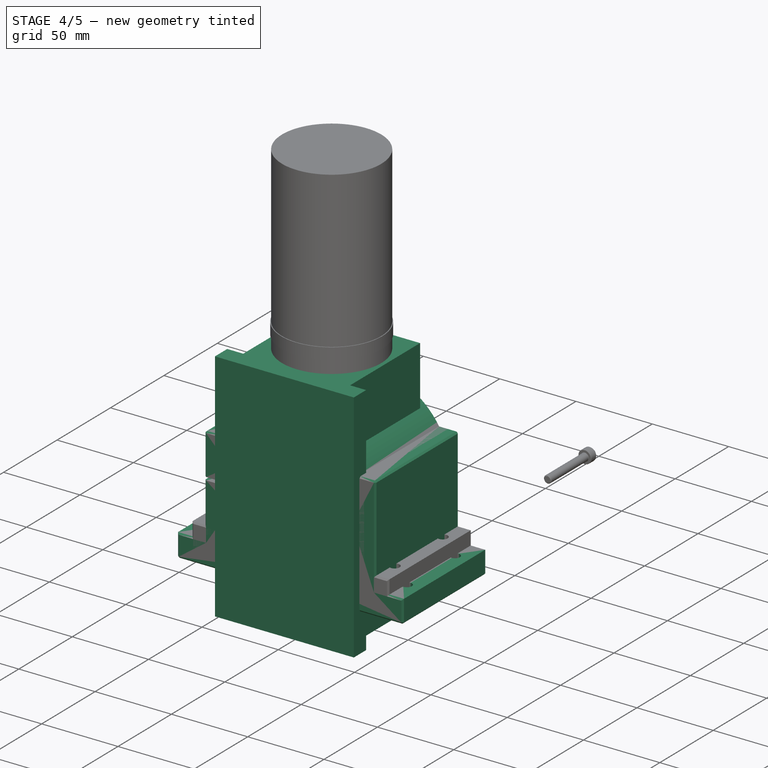
[diagram: stage 4 of 5 — iso view after this stage's code; geometry added in this stage tinted green]
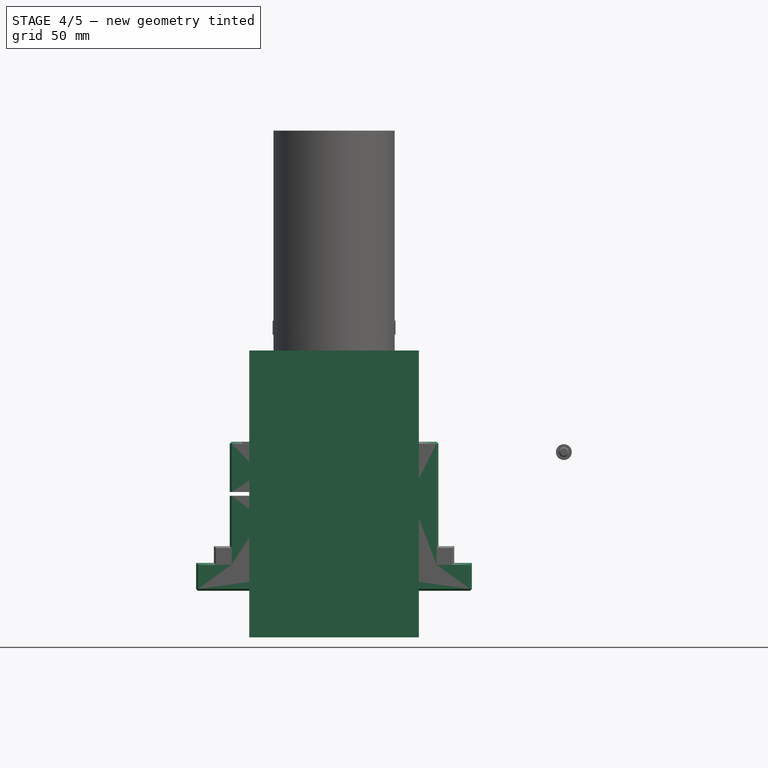
[diagram: stage 4 of 5 — front view after this stage's code; geometry added in this stage tinted green]
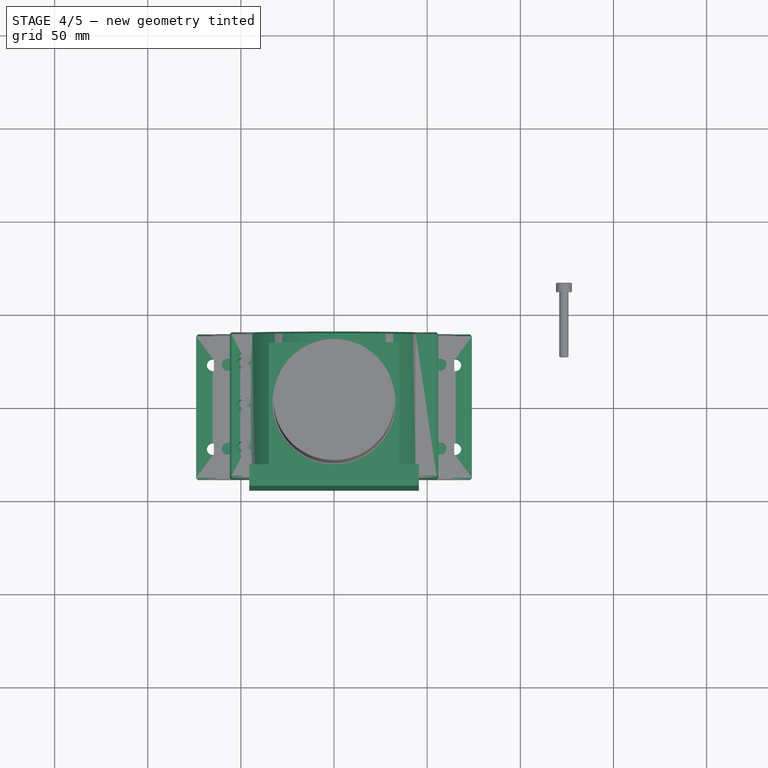
[diagram: stage 4 of 5 — top view after this stage's code; geometry added in this stage tinted green]
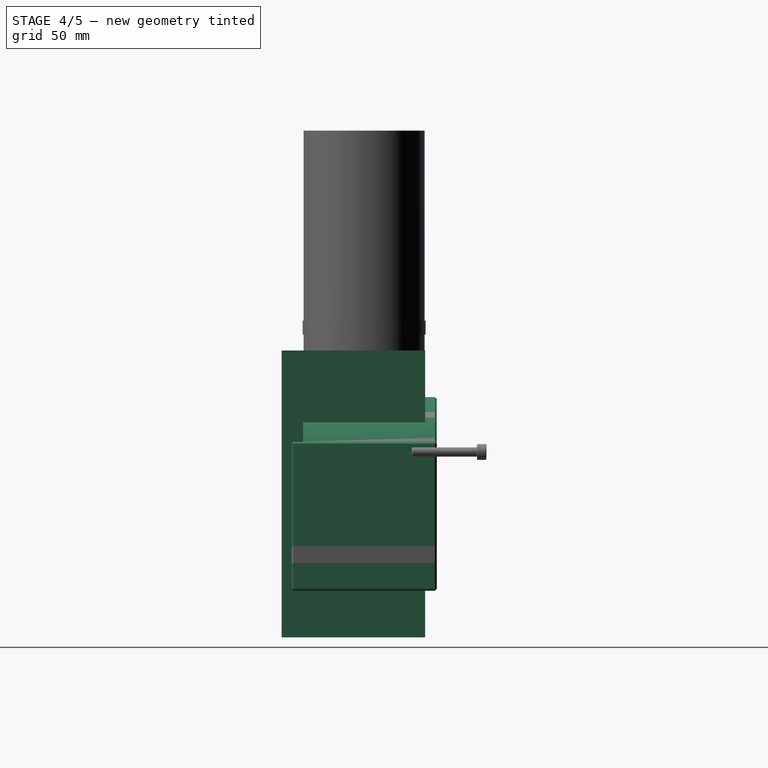
[diagram: stage 4 of 5 — right view after this stage's code; geometry added in this stage tinted green]
FEATURE [Sketcher::SketchObject] Sketch
  FullyConstrained = true
  MapMode = 5
  Support = -> [XY_Plane]
  sketch-geometry (8):
    g0: LineSegment StartX=-35 StartY=32.75 StartZ=0 EndX=35 EndY=32.75 EndZ=0
    g1: LineSegment StartX=35 StartY=32.75 StartZ=0 EndX=35 EndY=-32.75 EndZ=0
    g2: LineSegment StartX=-35 StartY=-32.75 StartZ=0 EndX=-35 EndY=32.75 EndZ=0
    g3: LineSegment StartX=-45.5 StartY=-32.75 StartZ=0 EndX=-35 EndY=-32.75 EndZ=0
    g4: LineSegment StartX=45.5 StartY=-32.75 StartZ=0 EndX=45.5 EndY=-44.25 EndZ=0
    g5: LineSegment StartX=45.5 StartY=-44.25 StartZ=0 EndX=-45.5 EndY=-44.25 EndZ=0
    g6: LineSegment StartX=-45.5 StartY=-44.25 StartZ=0 EndX=-45.5 EndY=-32.75 EndZ=0
    g7: LineSegment StartX=35 StartY=-32.75 StartZ=0 EndX=45.5 EndY=-32.75 EndZ=0
  constraints (22):
    c: Coincident(g0,g1)
    c: Coincident(g2,g0)
    c: Horizontal(g0)
    c: Vertical(g1)
    c: Vertical(g2)
    c: Coincident(g7,g4)
    c: Coincident(g4,g5)
    c: Coincident(g5,g6)
    c: Coincident(g6,g3)
    c: Horizontal(g3)
    c: Horizontal(g5)
    c: Vertical(g4)
    c: Vertical(g6)
    c: Symmetric(g2,g0,g-1)
    c: Coincident(g3,g2)
    c: Coincident(g7,g1)
    c: Tangent(g3,g7)
    c: Equal(g3,g7)
    c: DistanceX(g0,g0) = 70
    c: DistanceY(g4,g0) = 77
    c: DistanceX(g5,g4) = 91
    c: DistanceY(g4,g4) = 11.5
FEATURE [PartDesign::Pad] Pad
  ClaimChildren = false
  Direction = (1,1,1)
  Fit = 0
  FitJoin = 0
  InnerFit = 0
  InnerFitJoin = 0
  InnerTaperAngle = 0
  InnerTaperAngleRev = 0
  Length = 154
  Length2 = 100
  Linearize = true
  Midplane = true
  NewSolid = false
  Profile = -> Sketch
  Refine = true
  Suppress = false
  Type = 0
  _ProfileBasedVersion = 0
FEATURE [Sketcher::SketchObject] Sketch011
  FullyConstrained = true
  MapMode = 5
  Placement = pos=(0,0,14) rot=(0,0,1;0rad)
  Support = -> [Groove001]
  sketch-geometry (1):
    g0: Circle CenterX=0 CenterY=0 CenterZ=0 NormalX=0 NormalY=0 NormalZ=1 AngleXU=0 Radius=4.5
  constraints (2):
    c: Coincident(g0,g-1)
    c: Diameter(g0) = 9
FEATURE [PartDesign::Pocket] Pocket001
  BaseFeature = -> Groove001
  ClaimChildren = false
  Fit = 0
  FitJoin = 0
  InnerFit = 0
  InnerFitJoin = 0
  InnerTaperAngle = 0
  InnerTaperAngleRev = 0
  Length = 5
  Length2 = 100
  Linearize = true
  NewSolid = false
  Profile = -> Sketch011
  Refine = true
  Suppress = false
  Type = 1
  _ProfileBasedVersion = 0
FEATURE [PartDesign::Hole] Hole
  BaseFeature = -> Pocket001
  ClaimChildren = false
  CustomThreadClearance = 0
  Depth = 10
  DepthType = 0
  Diameter = 14
  DrillForDepth = false
  DrillPoint = 1
  DrillPointAngle = 118
  Fit = 0
  FitJoin = 0
  HoleCutCountersinkAngle = 90
  HoleCutCustomValues = false
  HoleCutDepth = 0
  HoleCutDiameter = 14.1
  HoleCutType = 0
  InnerFit = 0
  InnerFitJoin = 0
  ModelThread = false
  NewSolid = false
  Profile = -> Pocket001 [Edge39]
  Refine = true
  Reversed = true
  Suppress = false
  Tapered = false
  TaperedAngle = 90
  ThreadClass = 0
  ThreadDepth = 10
  ThreadDepthType = 0
  ThreadDirection = 0
  ThreadFit = 0
  ThreadSize = 0
  ThreadType = 0
  Threaded = false
  UseCustomThreadClearance = false
  _ProfileBasedVersion = 0
FEATURE [PartDesign::Chamfer] Chamfer001
  Angle = 45
  Base = -> Hole [Edge10]
  BaseFeature = -> Hole
  ChamferType = 0
  FlipDirection = false
  NewSolid = false
  Refine = true
  Size = 1
  Size2 = 1
  SupportTransform = false
  Suppress = false
FEATURE [PartDesign::Body] Body004  label="65mm bracket"
  AutoGroupSolids = false
  ExportMode = 0
  Group = -> [Sketch016,Pad012,Sketch017,Hole003,Chamfer002,Sketch018,Pocket002,Mirrored001]
  Origin = -> Origin004
  Placement = pos=(-170,173,-3.84e-14) rot=(1,0,0;4.71239rad)
  Tip = -> Mirrored001
  _ExportChildren = -> [Pad012,Hole003,Chamfer002,Pocket002,Mirrored001]
  _GroupVersion = 1
FEATURE [Sketcher::SketchObject] Sketch019
  FullyConstrained = true
  MapMode = 5
  Placement = pos=(0,0,0) rot=(1,0,0;1.5708rad)
  Support = -> [XZ_Plane005]
  sketch-geometry (18):
    g0: ArcOfCircle CenterX=0 CenterY=0 CenterZ=0 NormalX=0 NormalY=0 NormalZ=1 AngleXU=0 Radius=40 StartAngle=3.1666 EndAngle=9.39978
    g1: LineSegment StartX=-56 StartY=28 StartZ=0 EndX=-43.8178 EndY=28 EndZ=0
    g2: LineSegment StartX=56 StartY=28 StartZ=0 EndX=56 EndY=-37 EndZ=0
    g3: LineSegment StartX=-56 StartY=-37 StartZ=0 EndX=-56 EndY=-1 EndZ=0
    g4: LineSegment StartX=-74 StartY=-52 StartZ=0 EndX=74 EndY=-52 EndZ=0
    g5: LineSegment StartX=74 StartY=-52 StartZ=0 EndX=74 EndY=-37 EndZ=0
    g6: LineSegment StartX=74 StartY=-37 StartZ=0 EndX=56 EndY=-37 EndZ=0
    g7: LineSegment StartX=-74 StartY=-37 StartZ=0 EndX=-74 EndY=-52 EndZ=0
    g8: LineSegment StartX=-56 StartY=-37 StartZ=0 EndX=-74 EndY=-37 EndZ=0
    g9: LineSegment StartX=-56 StartY=1 StartZ=0 EndX=-39.9875 EndY=1 EndZ=0
    g10: LineSegment StartX=-39.9875 StartY=-1 StartZ=0 EndX=-56 EndY=-1 EndZ=0
    g11: GeomPoint [constr] X=0 Y=52 Z=0
    g12: LineSegment StartX=-56 StartY=1 StartZ=0 EndX=-56 EndY=28 EndZ=0
    g13: LineSegment [constr] StartX=-56 StartY=-1 StartZ=0 EndX=-56 EndY=1 EndZ=0
    g14: GeomPoint [constr] X=-56 Y=0 Z=0
    g15: ArcOfCircle CenterX=0 CenterY=0 CenterZ=0 NormalX=0 NormalY=0 NormalZ=1 AngleXU=0 Radius=52 StartAngle=0.56861 EndAngle=2.57298
    g16: LineSegment StartX=43.8178 StartY=28 StartZ=0 EndX=56 EndY=28 EndZ=0
    g17: GeomPoint [constr] X=0 Y=-52 Z=0
  constraints (45):
    c: Coincident(g0,g-1)
    c: Coincident(g16,g2)
    c: Coincident(g12,g1)
    c: Horizontal(g1)
    c: Vertical(g2)
    c: Vertical(g3)
    c: Coincident(g4,g5)
    c: Coincident(g5,g6)
    c: Coincident(g8,g7)
    c: Coincident(g7,g4)
    c: Horizontal(g4)
    c: Horizontal(g6)
    c: Vertical(g5)
    c: Vertical(g7)
    c: Diameter(g0) = 80
    c: DistanceY(g2,g2) = 65
    c: PointOnObject(g3,g6)
    c: Coincident(g6,g2)
    c: Tangent(g6,g8)
    c: PointOnObject(g8,g3)
    c: Horizontal(g9)
    c: Horizontal(g10)
    c: PointOnObject(g11,g-2)
    c: DistanceY(g4,g11) = 104
    c: DistanceY(g5,g5) = 15
    c: DistanceX(g4,g4) = 148
    c: Coincident(g3,g10)
    c: Coincident(g12,g9)
    c: Tangent(g3,g12)
    c: Coincident(g0,g10)
    c: Coincident(g0,g9)
    c: Coincident(g13,g3)
    c: Coincident(g13,g9)
    c: PointOnObject(g14,g-1)
    c: Symmetric(g9,g3,g14)
    c: DistanceY(g13,g13) = 2
    c: Tangent(g1,g16)
    c: Coincident(g15,g16)
    c: Coincident(g15,g1)
    c: PointOnObject(g11,g15)
    c: Coincident(g15,g0)
    c: Symmetric(g4,g4,g17)
    c: DistanceX(g8,g8) = 18
    c: Symmetric(g11,g17,g0)
    c: Equal(g16,g1)
FEATURE [PartDesign::Pad] Pad013
  ClaimChildren = false
  Direction = (1,1,1)
  Fit = 0
  FitJoin = 0
  InnerFit = 0
  InnerFitJoin = 0
  InnerTaperAngle = 0
  InnerTaperAngleRev = 0
  Length = 78
  Length2 = 100
  Linearize = true
  Midplane = true
  NewSolid = false
  Placement = pos=(0,0,0) rot=(1,0,0;1.5708rad)
  Profile = -> Sketch019
  Refine = true
  Suppress = false
  Type = 0
  _ProfileBasedVersion = 0
FEATURE [Sketcher::SketchObject] Sketch020
  ExternalGeometry = -> [Pad013]
  FullyConstrained = true
  MapMode = 5
  Placement = pos=(0,0,28) rot=(0,0,1;3.14159rad)
  Support = -> [Pad013]
  sketch-geometry (3):
    g0: Circle CenterX=49.5 CenterY=22.5 CenterZ=0 NormalX=0 NormalY=0 NormalZ=1 AngleXU=0 Radius=4.75
    g1: Circle CenterX=49.5 CenterY=0 CenterZ=0 NormalX=0 NormalY=0 NormalZ=1 AngleXU=0 Radius=4.75
    g2: Circle CenterX=49.5 CenterY=-22.5 CenterZ=0 NormalX=0 NormalY=0 NormalZ=1 AngleXU=0 Radius=4.75
  constraints (8):
    c: PointOnObject(g1,g-1)
    c: Vertical(g0,g1)
    c: Symmetric(g0,g2,g1)
    c: Equal(g0,g1)
    c: Equal(g1,g2)
    c: Diameter(g0) = 9.5
    c: DistanceY(g2,g0) = 45
    c: DistanceX(g1,g-3) = 6.5
FEATURE [PartDesign::Hole] Hole004
  BaseFeature = -> Pad013
  ClaimChildren = false
  CustomThreadClearance = 0
  Depth = 50
  DepthType = 0
  Diameter = 5.8
  DrillForDepth = false
  DrillPoint = 1
  DrillPointAngle = 118
  Fit = 0
  FitJoin = 0
  HoleCutCountersinkAngle = 90
  HoleCutCustomValues = false
  HoleCutDepth = 7
  HoleCutDiameter = 9.5
  HoleCutType = 1
  InnerFit = 0
  InnerFitJoin = 0
  ModelThread = false
  NewSolid = false
  Placement = pos=(0,0,0) rot=(1,0,0;1.5708rad)
  Profile = -> Sketch020
  Refine = true
  Suppress = false
  Tapered = false
  TaperedAngle = 90
  ThreadClass = 0
  ThreadDepth = 50
  ThreadDepthType = 0
  ThreadDirection = 0
  ThreadFit = 2
  ThreadSize = 13
  ThreadType = 1
  Threaded = false
  UseCustomThreadClearance = false
  _ProfileBasedVersion = 0
FEATURE [PartDesign::Chamfer] Chamfer003
  Angle = 45
  Base = -> Hole004 [Edge14,Edge18,Edge17,Edge48,Edge19,Edge54,Edge16,Edge3,Edge6,Edge24,Edge23,Edge22,Edge21,Edge20,Edge25,Edge29,Edge28,Edge30,Edge31,Edge32,Edge33,Edge34,Edge35,Edge7,Edge4,Edge27,Edge36,Edge57]
  BaseFeature = -> Hole004
  ChamferType = 0
  FlipDirection = false
  NewSolid = false
  Placement = pos=(0,0,0) rot=(1,0,0;1.5708rad)
  Refine = true
  Size = 1
  Size2 = 1
  SupportTransform = false
  Suppress = false
FEATURE [Sketcher::SketchObject] Sketch021
  ExternalGeometry = -> [Chamfer003]
  FullyConstrained = true
  MapMode = 5
  Placement = pos=(0,0,-37) rot=(0,0,1;3.14159rad)
  Support = -> [Chamfer003]
  sketch-geometry (3):
    g0: Circle CenterX=-65 CenterY=22.5 CenterZ=0 NormalX=0 NormalY=0 NormalZ=1 AngleXU=0 Radius=3.25
    g1: Circle CenterX=-65 CenterY=-22.5 CenterZ=0 NormalX=0 NormalY=0 NormalZ=1 AngleXU=0 Radius=3.25
    g2: GeomPoint [constr] X=-65 Y=0 Z=0
  constraints (7):
    c: Equal(g1,g0)
    c: Diameter(g0) = 6.5
    c: DistanceY(g1,g0) = 45
    c: DistanceX(g0,g-1) = 65
    c: PointOnObject(g2,g-1)
    c: Vertical(g0,g1)
    c: Symmetric(g0,g1,g2)
FEATURE [PartDesign::Pocket] Pocket003
  BaseFeature = -> Chamfer003
  ClaimChildren = false
  Fit = 0
  FitJoin = 0
  InnerFit = 0
  InnerFitJoin = 0
  InnerTaperAngle = 0
  InnerTaperAngleRev = 0
  Length = 5
  Length2 = 100
  Linearize = true
  NewSolid = false
  Placement = pos=(0,0,0) rot=(1,0,0;1.5708rad)
  Profile = -> Sketch021
  Refine = true
  Suppress = false
  Type = 1
  _ProfileBasedVersion = 0
FEATURE [PartDesign::Mirrored] Mirrored002
  BaseFeature = -> Pocket003
  CopyShape = false
  MirrorPlane = -> YZ_Plane005
  NewSolid = false
  OriginalSubs = -> [Pocket003]
  Originals = -> [Pocket003]
  ParallelTransform = true
  Placement = pos=(0,0,0) rot=(1,0,0;1.5708rad)
  Refine = true
  SubTransform = true
  Suppress = false
  _Version = 1
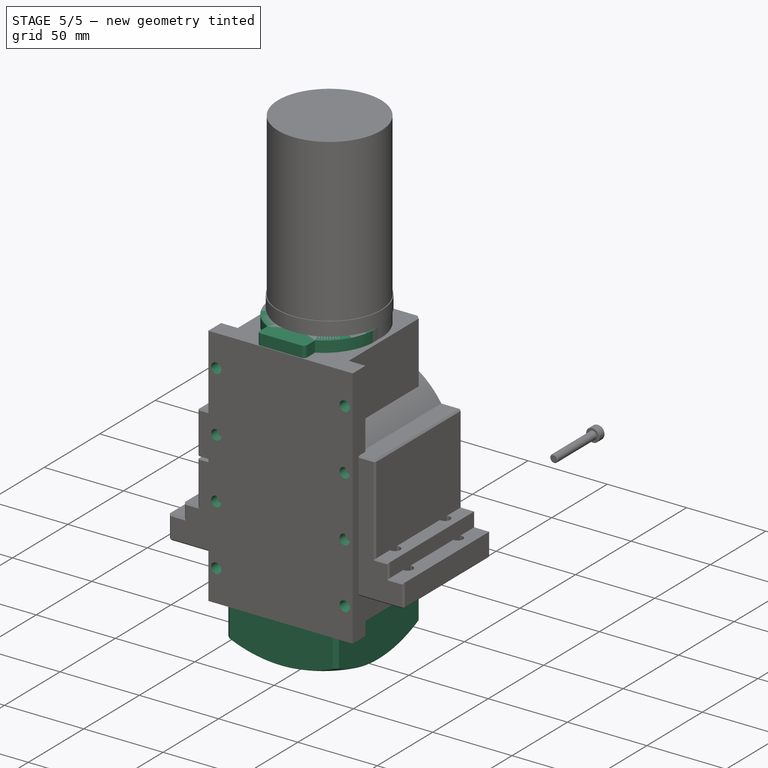
[diagram: stage 5 of 5 — iso view after this stage's code; geometry added in this stage tinted green]
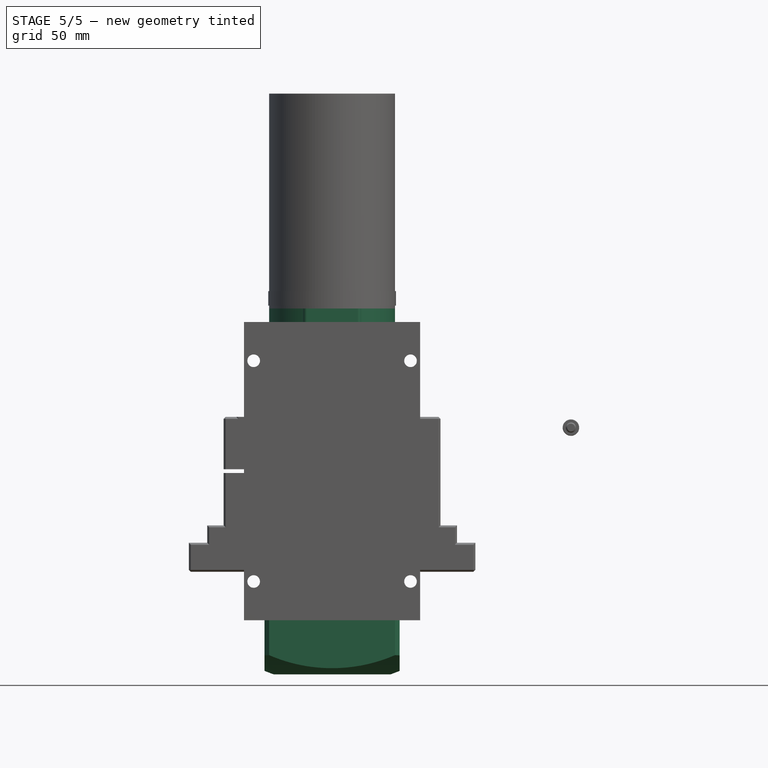
[diagram: stage 5 of 5 — front view after this stage's code; geometry added in this stage tinted green]
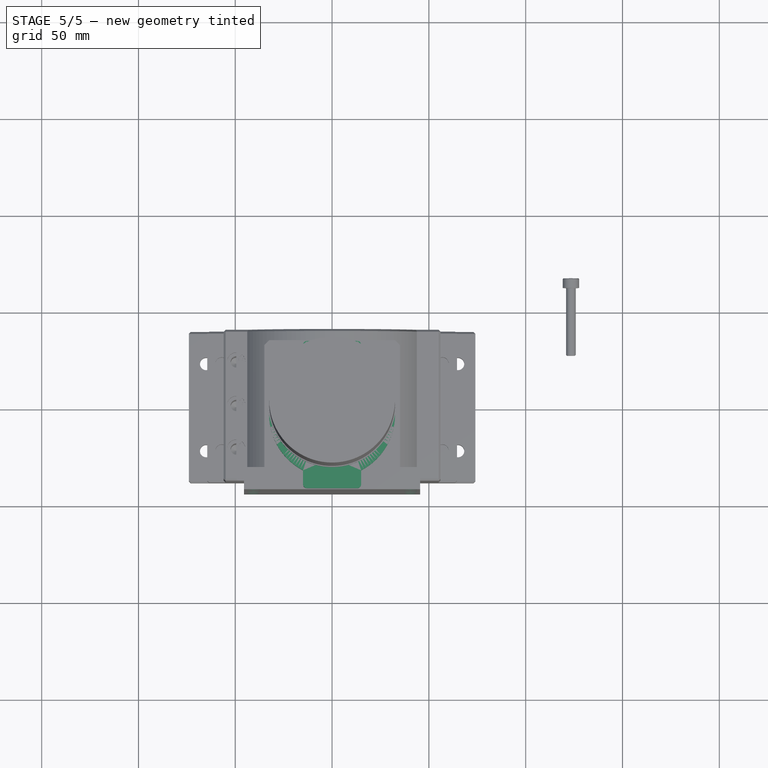
[diagram: stage 5 of 5 — top view after this stage's code; geometry added in this stage tinted green]
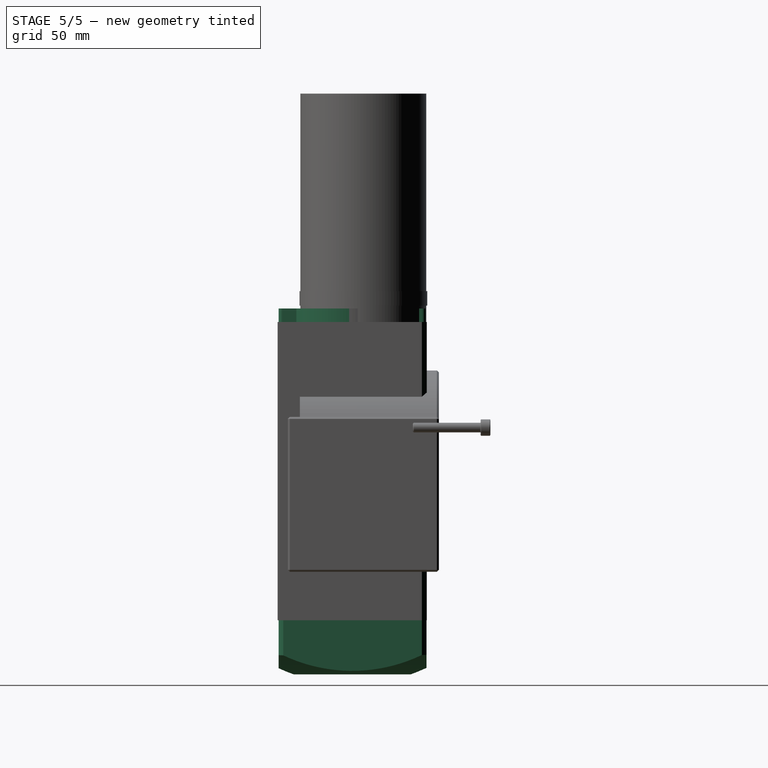
[diagram: stage 5 of 5 — right view after this stage's code; geometry added in this stage tinted green]
FEATURE [Sketcher::SketchObject] Sketch001
  ExternalGeometry = -> [Pad]
  FullyConstrained = true
  MapMode = 5
  Placement = pos=(0,0,77) rot=(0,0,1;0rad)
  Support = -> [Pad]
  sketch-geometry (18):
    g0: ArcOfCircle CenterX=0 CenterY=-5.75 CenterZ=0 NormalX=0 NormalY=0 NormalZ=1 AngleXU=0 Radius=32.5 StartAngle=2.05052 EndAngle=4.23266
    g1: LineSegment StartX=15 StartY=30.25 StartZ=0 EndX=15 EndY=23.0814 EndZ=0
    g2: LineSegment StartX=-15 StartY=23.0814 StartZ=0 EndX=-15 EndY=30.25 EndZ=0
    g3: LineSegment StartX=-13 StartY=-43.75 StartZ=0 EndX=13 EndY=-43.75 EndZ=0
    g4: LineSegment StartX=15 StartY=-41.75 StartZ=0 EndX=15 EndY=-34.5814 EndZ=0
    g5: LineSegment StartX=-15 StartY=-34.5814 StartZ=0 EndX=-15 EndY=-41.75 EndZ=0
    g6: ArcOfCircle CenterX=13 CenterY=-41.75 CenterZ=0 NormalX=0 NormalY=0 NormalZ=1 AngleXU=0 Radius=2 StartAngle=4.71239 EndAngle=6.28319
    g7: GeomPoint [constr] X=15 Y=-43.75 Z=0
    g8: ArcOfCircle CenterX=-13 CenterY=-41.75 CenterZ=0 NormalX=0 NormalY=0 NormalZ=1 AngleXU=0 Radius=2 StartAngle=3.14159 EndAngle=4.71239
    g9: GeomPoint [constr] X=-15 Y=-43.75 Z=0
    g10: ArcOfCircle CenterX=0 CenterY=-5.75 CenterZ=0 NormalX=0 NormalY=0 NormalZ=1 AngleXU=0 Radius=32.5 StartAngle=5.19212 EndAngle=7.37425
    g11: GeomPoint [constr] X=0 Y=-43.75 Z=0
    g12: LineSegment StartX=-13 StartY=32.25 StartZ=0 EndX=13 EndY=32.25 EndZ=0
    g13: GeomPoint [constr] X=0 Y=32.25 Z=0
    g14: ArcOfCircle CenterX=-13 CenterY=30.25 CenterZ=0 NormalX=0 NormalY=0 NormalZ=1 AngleXU=0 Radius=2 StartAngle=1.5708 EndAngle=3.14159
    g15: GeomPoint [constr] X=-15 Y=32.25 Z=0
    g16: ArcOfCircle CenterX=13 CenterY=30.25 CenterZ=0 NormalX=0 NormalY=0 NormalZ=1 AngleXU=0 Radius=2 StartAngle=3e-16 EndAngle=1.5708
    g17: GeomPoint [constr] X=15 Y=32.25 Z=0
  constraints (43):
    c: Diameter(g0) = 65
    c: PointOnObject(g0,g-2)
    c: Vertical(g1)
    c: Vertical(g2)
    c: Vertical(g4)
    c: Vertical(g5)
    c: Vertical(g4,g1)
    c: Vertical(g5,g2)
    c: Tangent(g3,g6) = -1.5708
    c: Tangent(g4,g6) = -1.5708
    c: Tangent(g3,g8) = -1.5708
    c: Tangent(g5,g8) = -1.5708
    c: Coincident(g0,g2)
    c: Coincident(g10,g1)
    c: Equal(g0,g10)
    c: Coincident(g0,g5)
    c: Coincident(g10,g4)
    c: Coincident(g0,g10)
    c: Vertical(g7,g4)
    c: Horizontal(g7,g3)
    c: Horizontal(g9,g3)
    c: Vertical(g5,g9)
    c: PointOnObject(g11,g3)
    c: PointOnObject(g11,g-2)
    c: Symmetric(g9,g7,g11)
    c: Horizontal(g12)
    c: PointOnObject(g13,g12)
    c: Symmetric(g13,g11,g0)
    c: PointOnObject(g15,g2)
    c: PointOnObject(g15,g12)
    c: Tangent(g2,g14) = 1.5708
    c: Tangent(g12,g14) = 1.5708
    c: PointOnObject(g17,g1)
    c: PointOnObject(g17,g12)
    c: Tangent(g1,g16) = 1.5708
    c: Tangent(g12,g16) = 1.5708
    c: Equal(g6,g8)
    c: Equal(g8,g14)
    c: Equal(g14,g16)
    c: Diameter(g14) = 4
    c: DistanceY(g13,g-3) = 0.5
    c: DistanceX(g15,g17) = 30
    c: DistanceY(g-4,g11) = 0.5
FEATURE [PartDesign::Pad] Pad001
  BaseFeature = -> Pad
  ClaimChildren = false
  Direction = (1,1,1)
  Fit = 0
  FitJoin = 0
  InnerFit = 0
  InnerFitJoin = 0
  InnerTaperAngle = 0
  InnerTaperAngleRev = 0
  Length = 7
  Length2 = 100
  Linearize = true
  NewSolid = false
  Profile = -> Sketch001
  Refine = true
  Suppress = false
  Type = 0
  _ProfileBasedVersion = 0
FEATURE [Sketcher::SketchObject] Sketch002
  ExternalGeometry = -> [Pad001]
  FullyConstrained = true
  MapMode = 5
  Placement = pos=(0,0,84) rot=(0,0,1;0rad)
  Support = -> [Pad001]
  sketch-geometry (1):
    g0: Circle CenterX=0 CenterY=-5.75 CenterZ=0 NormalX=0 NormalY=0 NormalZ=1 AngleXU=0 Radius=25.5
  constraints (2):
    c: Coincident(g0,g-3)
    c: Diameter(g0) = 51
FEATURE [PartDesign::Pad] Pad002
  BaseFeature = -> Pad001
  ClaimChildren = false
  Direction = (1,1,1)
  Fit = 0
  FitJoin = 0
  InnerFit = 0
  InnerFitJoin = 0
  InnerTaperAngle = 0
  InnerTaperAngleRev = 0
  Length = 18
  Length2 = 100
  Linearize = true
  NewSolid = false
  Profile = -> Sketch002
  Refine = true
  Suppress = false
  Type = 0
  _ProfileBasedVersion = 0
FEATURE [PartDesign::Chamfer] Chamfer
  Angle = 45
  Base = -> Pad002 [Edge1,Edge2]
  BaseFeature = -> Pad002
  ChamferType = 0
  FlipDirection = false
  NewSolid = false
  Refine = true
  Size = 2.5
  Size2 = 1
  SupportTransform = false
  Suppress = false
FEATURE [Sketcher::SketchObject] Sketch003
  ExternalGeometry = -> [Chamfer]
  FullyConstrained = true
  MapMode = 5
  Placement = pos=(0,0,-77) rot=(1,0,0;3.14159rad)
  Support = -> [Chamfer]
  sketch-geometry (8):
    g0: LineSegment StartX=34.9 StartY=-30.25 StartZ=0 EndX=34.9 EndY=41.35 EndZ=0
    g1: LineSegment StartX=-34.9 StartY=41.35 StartZ=0 EndX=-34.9 EndY=-30.25 EndZ=0
    g2: LineSegment StartX=-32.5 StartY=-32.65 StartZ=0 EndX=32.5 EndY=-32.65 EndZ=0
    g3: LineSegment StartX=32.5 StartY=-32.65 StartZ=0 EndX=34.9 EndY=-30.25 EndZ=0
    g4: LineSegment StartX=-32.5 StartY=-32.65 StartZ=0 EndX=-34.9 EndY=-30.25 EndZ=0
    g5: LineSegment StartX=-32.5 StartY=43.75 StartZ=0 EndX=32.5 EndY=43.75 EndZ=0
    g6: LineSegment StartX=-34.9 StartY=41.35 StartZ=0 EndX=-32.5 EndY=43.75 EndZ=0
    g7: LineSegment StartX=34.9 StartY=41.35 StartZ=0 EndX=32.5 EndY=43.75 EndZ=0
  constraints (24):
    c: Vertical(g0)
    c: Vertical(g1)
    c: DistanceX(g0,g-5) = 0.1
    c: DistanceX(g-3,g1) = 0.1
    c: Horizontal(g2)
    c: Coincident(g3,g2)
    c: Coincident(g3,g0)
    c: Coincident(g4,g2)
    c: Coincident(g4,g1)
    c: Vertical(g2,g-4)
    c: Vertical(g-4,g2)
    c: Horizontal(g-5,g0)
    c: Horizontal(g1,g-3)
    c: DistanceY(g-4,g2) = 0.1
    c: Horizontal(g5)
    c: Coincident(g6,g1)
    c: Coincident(g6,g5)
    c: Coincident(g7,g0)
    c: Coincident(g7,g5)
    c: Vertical(g2,g5)
    c: Vertical(g5,g2)
    c: Equal(g6,g7)
    c: Equal(g7,g3)
    c: DistanceY(g5,g-6) = 0.5
FEATURE [PartDesign::Pad] Pad003
  BaseFeature = -> Chamfer
  ClaimChildren = false
  Direction = (1,1,1)
  Fit = 0
  FitJoin = 0
  InnerFit = 0
  InnerFitJoin = 0
  InnerTaperAngle = 0
  InnerTaperAngleRev = 0
  Length = 28
  Length2 = 100
  Linearize = true
  NewSolid = false
  Profile = -> Sketch003
  Refine = true
  Suppress = false
  Type = 0
  _ProfileBasedVersion = 0
FEATURE [Sketcher::SketchObject] Sketch004
  ExternalGeometry = -> [Pad003]
  FullyConstrained = true
  MapMode = 5
  Placement = pos=(0,0,0) rot=(1,0,0;1.5708rad)
  Support = -> [XZ_Plane]
  sketch-geometry (3):
    g0: ArcOfCircle CenterX=-1.65e-14 CenterY=-20 CenterZ=0 NormalX=0 NormalY=0 NormalZ=1 AngleXU=0 Radius=90 StartAngle=4.71239 EndAngle=5.5194
    g1: LineSegment StartX=-1.65e-14 StartY=-110 StartZ=0 EndX=65 EndY=-110 EndZ=0
    g2: LineSegment StartX=65 StartY=-82.2495 StartZ=0 EndX=65 EndY=-110 EndZ=0
  constraints (10):
    c: PointOnObject(g0,g-2)
    c: Vertical(g0,g0)
    c: Horizontal(g1)
    c: Coincident(g2,g0)
    c: Coincident(g2,g1)
    c: Vertical(g2)
    c: Diameter(g0) = 180
    c: Coincident(g1,g0)
    c: DistanceX(g1,g1) = 65
    c: DistanceY(g0,g-1) = 20
FEATURE [PartDesign::Line] DatumLine
  AttacherType = Attacher::AttachEngineLine
  Length = 239
  MapMode = 42
  MinimumLength = 10
  Placement = pos=(0,-5.75,0) rot=(0,0,1;0rad)
  ResizeMode = 0
  Support = -> [Pad003]
FEATURE [PartDesign::Groove] Groove
  Angle = 360
  Axis = (0,0,1)
  Base = (0,-5.75,0)
  BaseFeature = -> Pad003
  ClaimChildren = false
  Fit = 0
  FitJoin = 0
  InnerFit = 0
  InnerFitJoin = 0
  NewSolid = false
  Profile = -> Sketch004
  ReferenceAxis = -> DatumLine
  Refine = true
  Suppress = false
  _ProfileBasedVersion = 0
FEATURE [Sketcher::SketchObject] Sketch005
  ExternalGeometry = -> [Groove]
  FullyConstrained = true
  MapMode = 5
  Placement = pos=(0,-44.25,0) rot=(1,0,0;1.5708rad)
  Support = -> [Groove]
  sketch-geometry (7):
    g0: Circle CenterX=-40.5 CenterY=57 CenterZ=0 NormalX=0 NormalY=0 NormalZ=1 AngleXU=0 Radius=3.25
    g1: Circle CenterX=-40.5 CenterY=19 CenterZ=0 NormalX=0 NormalY=0 NormalZ=1 AngleXU=0 Radius=3.25
    g2: Circle CenterX=-40.5 CenterY=-19 CenterZ=0 NormalX=0 NormalY=0 NormalZ=1 AngleXU=0 Radius=3.25
    g3: Circle CenterX=-40.5 CenterY=-57 CenterZ=0 NormalX=0 NormalY=0 NormalZ=1 AngleXU=0 Radius=3.25
    g4: LineSegment [constr] StartX=-40.5 StartY=57 StartZ=0 EndX=-40.5 EndY=19 EndZ=0
    g5: LineSegment [constr] StartX=-40.5 StartY=19 StartZ=0 EndX=-40.5 EndY=-19 EndZ=0
    g6: LineSegment [constr] StartX=-40.5 StartY=-19 StartZ=0 EndX=-40.5 EndY=-57 EndZ=0
  constraints (18):
    c: Equal(g0,g1)
    c: Equal(g1,g2)
    c: Equal(g2,g3)
    c: Vertical(g0,g1)
    c: Vertical(g1,g2)
    c: Vertical(g2,g3)
    c: Coincident(g4,g0)
    c: Coincident(g4,g1)
    c: Coincident(g5,g1)
    c: Coincident(g5,g2)
    c: Coincident(g6,g2)
    c: Coincident(g6,g3)
    c: Equal(g4,g5)
    c: Equal(g5,g6)
    c: DistanceY(g4,g4) = 38
    c: DistanceY(g0,g-3) = 20
    c: DistanceX(g0,g-1) = 40.5
    c: Diameter(g0) = 6.5
FEATURE [PartDesign::Pocket] Pocket
  BaseFeature = -> Groove
  ClaimChildren = false
  Fit = 0
  FitJoin = 0
  InnerFit = 0
  InnerFitJoin = 0
  InnerTaperAngle = 0
  InnerTaperAngleRev = 0
  Length = 5
  Length2 = 100
  Linearize = true
  NewSolid = false
  Profile = -> Sketch005
  Refine = true
  Suppress = false
  Type = 1
  _ProfileBasedVersion = 0
FEATURE [PartDesign::Mirrored] Mirrored
  BaseFeature = -> Pocket
  CopyShape = false
  MirrorPlane = -> YZ_Plane
  NewSolid = false
  OriginalSubs = -> [Pocket]
  Originals = -> [Pocket]
  ParallelTransform = true
  Refine = true
  SubTransform = true
  Suppress = false
  _Version = 1
FEATURE [Sketcher::SketchObject] Sketch006
  ExternalGeometry = -> [Mirrored]
  FullyConstrained = true
  MapMode = 5
  Placement = pos=(0,0,102) rot=(0,0,1;0rad)
  Support = -> [Mirrored]
  sketch-geometry (1):
    g0: Circle CenterX=0 CenterY=-5.75 CenterZ=0 NormalX=0 NormalY=0 NormalZ=1 AngleXU=0 Radius=7
  constraints (2):
    c: Coincident(g0,g-3)
    c: Diameter(g0) = 14
FEATURE [PartDesign::Pad] Pad004
  BaseFeature = -> Mirrored
  ClaimChildren = false
  Direction = (1,1,1)
  Fit = 0
  FitJoin = 0
  InnerFit = 0
  InnerFitJoin = 0
  InnerTaperAngle = 0
  InnerTaperAngleRev = 0
  Length = 32
  Length2 = 100
  Linearize = true
  NewSolid = false
  Profile = -> Sketch006
  Refine = true
  Suppress = false
  Type = 0
  _ProfileBasedVersion = 0
FEATURE [Sketcher::SketchObject] Sketch007
  ExternalGeometry = -> [Pad004]
  FullyConstrained = true
  MapMode = 5
  Placement = pos=(0,0,102) rot=(0,0,1;0rad)
  Support = -> [Pad004]
  sketch-geometry (1):
    g0: Circle CenterX=0 CenterY=-5.75 CenterZ=0 NormalX=0 NormalY=0 NormalZ=1 AngleXU=0 Radius=14
  constraints (2):
    c: Coincident(g0,g-3)
    c: Diameter(g0) = 28
FEATURE [PartDesign::Pad] Pad005
  BaseFeature = -> Pad004
  ClaimChildren = false
  ColoredElements = -> Pad005 [Face13,Face14,Face15,Face16,Face17,Face18,Face19,Face20,Face41,Face43]
  Direction = (1,1,1)
  Fit = 0
  FitJoin = 0
  InnerFit = 0
  InnerFitJoin = 0
  InnerTaperAngle = 0
  InnerTaperAngleRev = 0
  Length = 1.5
  Length2 = 100
  Linearize = true
  NewSolid = false
  Profile = -> Sketch007
  Refine = true
  Suppress = false
  Type = 0
  _ProfileBasedVersion = 0
FEATURE [PartDesign::Body] Body001  label="ER11"
  AutoGroupSolids = false
  ExportMode = 0
  Group = -> [Sketch008,Pad006,Sketch009,Pad007,Sketch010,Groove001,Sketch011,Pocket001,Hole,Chamfer001]
  Origin = -> Origin001
  Placement = pos=(0,-105,163) rot=(0,0,1;0rad)
  Tip = -> Chamfer001
  _ExportChildren = -> [Pad006,Pad007,Groove001,Hole,Chamfer001]
  _GroupVersion = 1
FEATURE [App::Link] Link001  label="ER11 nut"
  AutoLinkLabel = true
  AutoPlacement = true
  LinkPlacement = pos=(0,-7,163) rot=(0,0,1;0rad)
  LinkedObject = -> Body001
  Placement = pos=(0,-7,163) rot=(0,0,1;0rad)
  SyncGroupVisibility = false
  _LinkVersion = 1
FEATURE [PartDesign::Hole] Hole001
  BaseFeature = -> Pad005
  ClaimChildren = false
  CustomThreadClearance = 0
  Depth = 40
  DepthType = 0
  Diameter = 3.175
  DrillForDepth = false
  DrillPoint = 1
  DrillPointAngle = 118
  Fit = 0
  FitJoin = 0
  HoleCutCountersinkAngle = 90
  HoleCutCustomValues = false
  HoleCutDepth = 0
  HoleCutDiameter = 6.1
  HoleCutType = 0
  InnerFit = 0
  InnerFitJoin = 0
  ModelThread = false
  NewSolid = false
  Profile = -> Pad005 [Edge126]
  Refine = true
  Suppress = false
  Tapered = false
  TaperedAngle = 90
  ThreadClass = 0
  ThreadDepth = 40
  ThreadDepthType = 0
  ThreadDirection = 0
  ThreadFit = 0
  ThreadSize = 0
  ThreadType = 0
  Threaded = false
  UseCustomThreadClearance = false
  _ProfileBasedVersion = 0
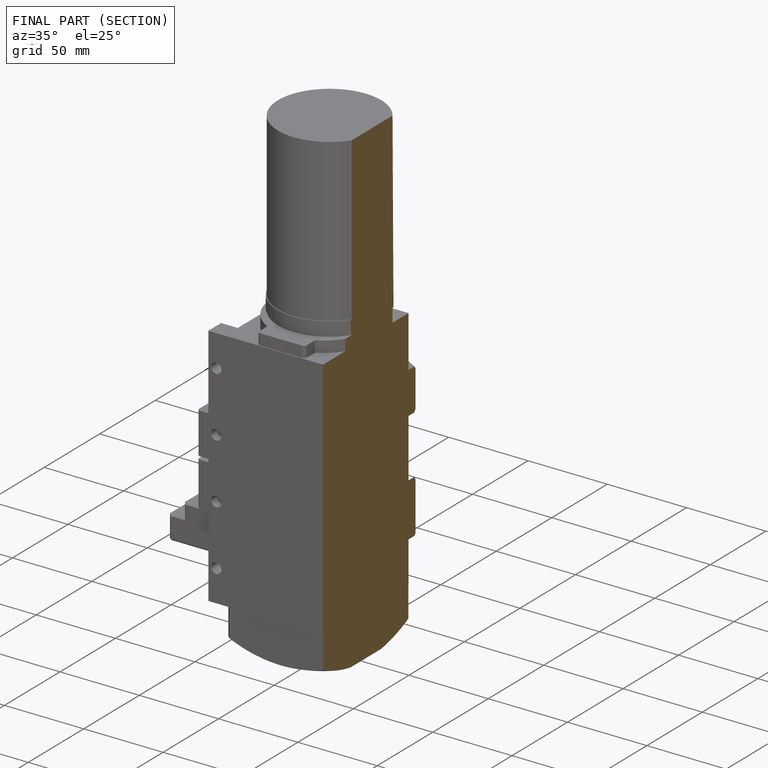
[diagram: finished part — half-section view (interior)]
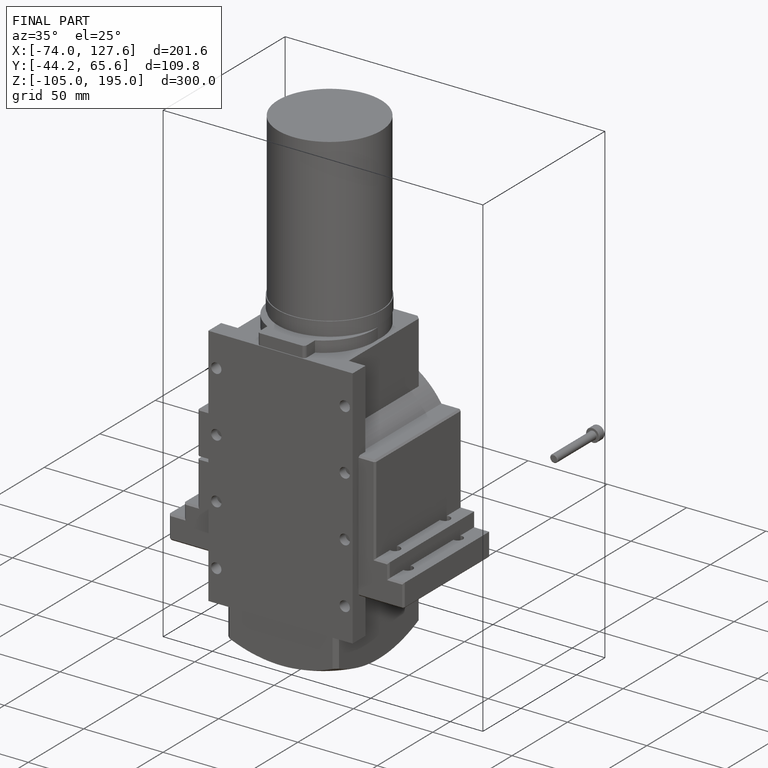
[diagram: finished part — iso view with bounding-box wireframe]
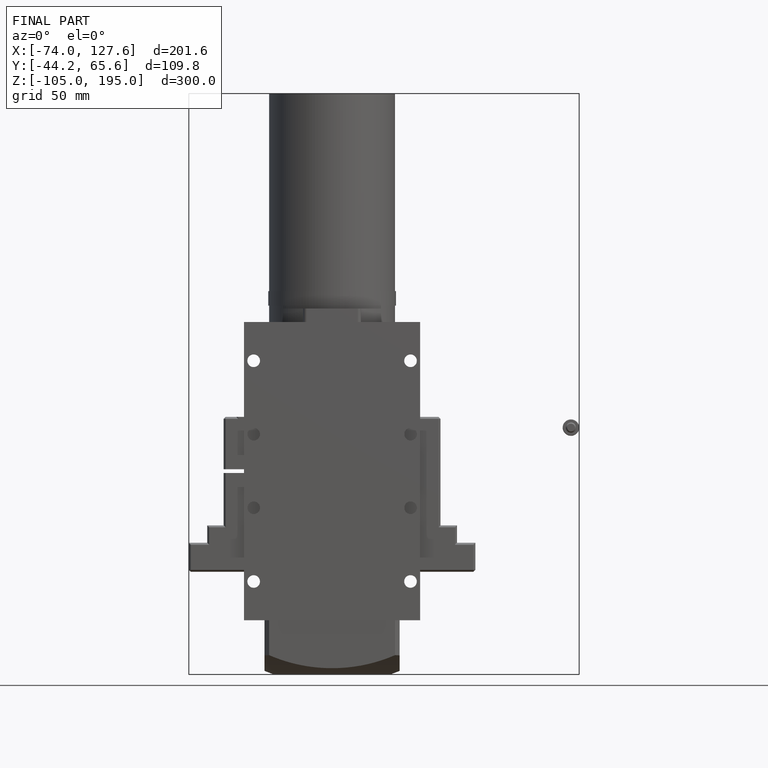
[diagram: finished part — front view with bounding-box wireframe]
